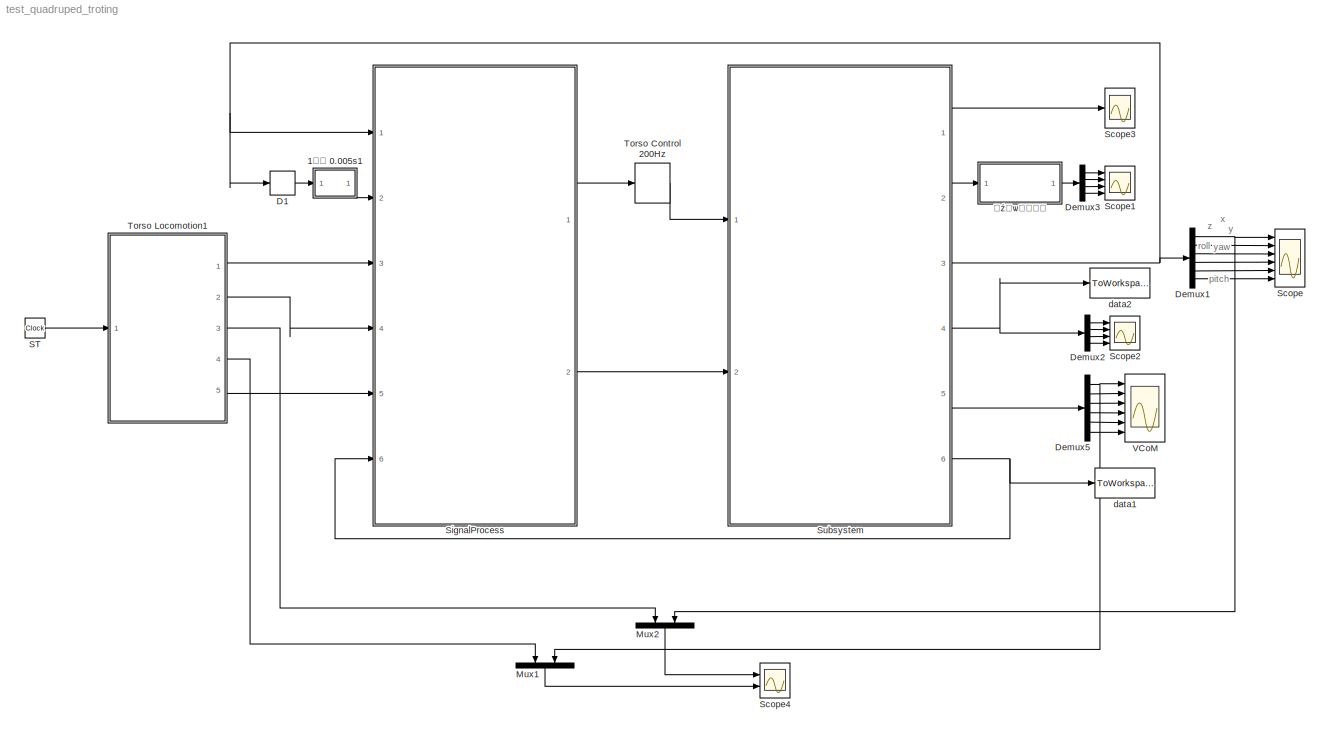
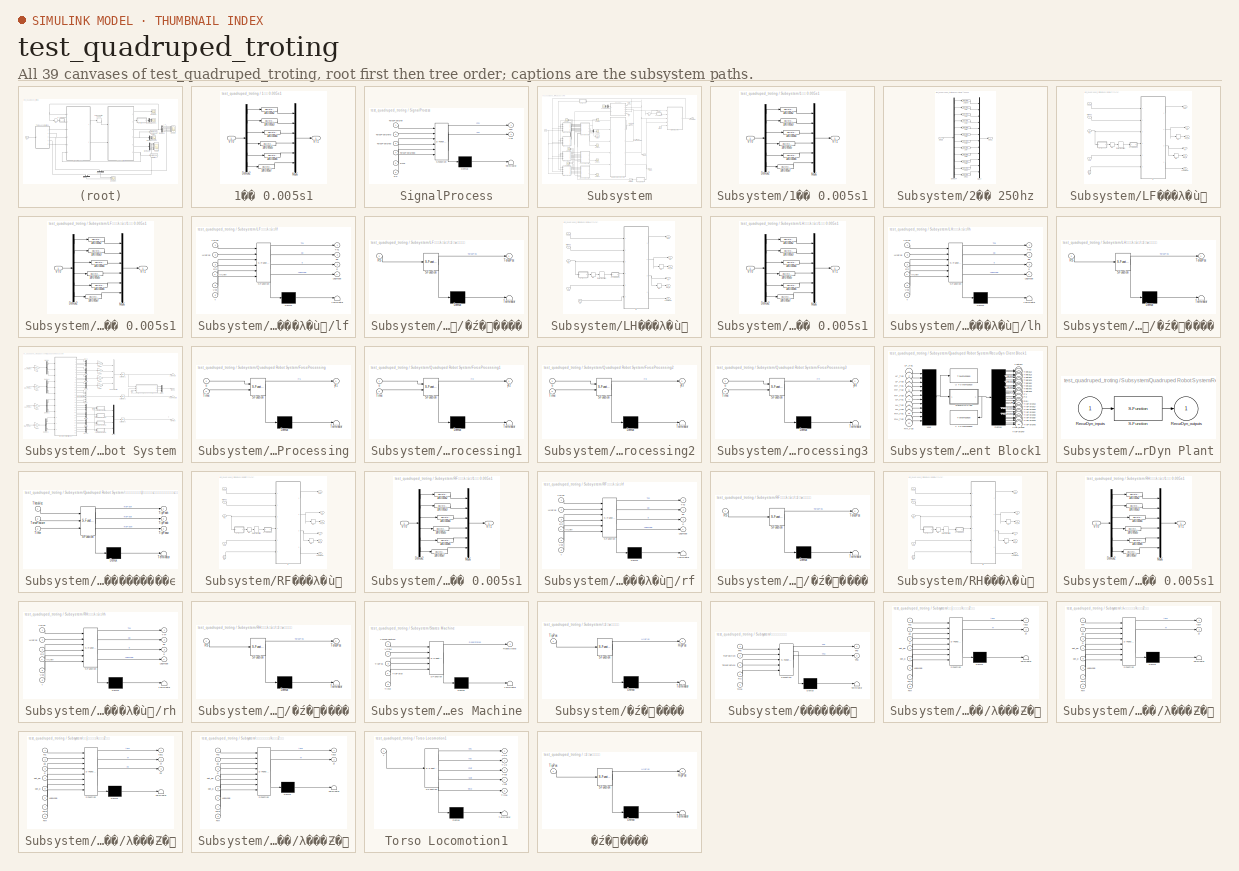
[diagram: thumbnail index - all 39 canvases of the model, root first then tree order]
MODEL test_quadruped_troting
KIND model
BLOCK [SubSystem] 1�� 0.005s1
  Ports = [1, 1]
  RequestExecContextInheritance = off
  SID = 2063
BLOCK [DiscreteTransferFcn] 1�� 0.005s1/1dl0.005s2
  Denominator = [1 -0.8128]
  InputPortMap = u0
  Numerator = [0.09091 0.09091]
  Ports = [1, 1]
  SID = 2065
  SampleTime = 0.001
BLOCK [DiscreteTransferFcn] 1�� 0.005s1/1dl0.005s3
  Denominator = [1 -0.8128]
  InputPortMap = u0
  Numerator = [0.09091 0.09091]
  Ports = [1, 1]
  SID = 2066
  SampleTime = 0.001
BLOCK [DiscreteTransferFcn] 1�� 0.005s1/1dl0.005s4
  Denominator = [1 -0.8128]
  InputPortMap = u0
  Numerator = [0.09091 0.09091]
  Ports = [1, 1]
  SID = 2067
  SampleTime = 0.001
BLOCK [DiscreteTransferFcn] 1�� 0.005s1/1dl0.005s5
  Denominator = [1 -0.8128]
  InputPortMap = u0
  Numerator = [0.09091 0.09091]
  Ports = [1, 1]
  SID = 2068
  SampleTime = 0.001
BLOCK [DiscreteTransferFcn] 1�� 0.005s1/1dl0.005s6
  Denominator = [1 -0.8128]
  InputPortMap = u0
  Numerator = [0.09091 0.09091]
  Ports = [1, 1]
  SID = 2069
  SampleTime = 0.001
BLOCK [DiscreteTransferFcn] 1�� 0.005s1/1dl0.005s7
  Denominator = [1 -0.8128]
  InputPortMap = u0
  Numerator = [0.09091 0.09091]
  Ports = [1, 1]
  SID = 2070
  SampleTime = 0.001
BLOCK [Demux] 1�� 0.005s1/Demux2
  DisplayOption = bar
  Outputs = 6
  Ports = [1, 6]
  SID = 2071
BLOCK [Mux] 1�� 0.005s1/Mux6
  DisplayOption = bar
  Inputs = 6
  Ports = [6, 1]
  SID = 2072
BLOCK [Inport] 1�� 0.005s1/VT0
  IconDisplay = Port number
  SID = 2064
BLOCK [Outport] 1�� 0.005s1/VT1
  IconDisplay = Port number
  SID = 2073
BLOCK [Derivative] D1
  CoefficientInTFapproximation = 0.01
  SID = 1705
BLOCK [Demux] Demux1
  DisplayOption = bar
  Outputs = 6
  Ports = [1, 6]
  SID = 1351
BLOCK [Demux] Demux2
  DisplayOption = bar
  Ports = [1, 4]
  SID = 1323
BLOCK [Demux] Demux3
  DisplayOption = bar
  Ports = [1, 4]
  SID = 1362
BLOCK [Demux] Demux5
  DisplayOption = bar
  Outputs = 6
  Ports = [1, 6]
  SID = 1744
BLOCK [Mux] Mux1
  DisplayOption = bar
  Inputs = 2
  Ports = [2, 1]
  SID = 2359
BLOCK [Mux] Mux2
  DisplayOption = bar
  Inputs = 2
  Ports = [2, 1]
  SID = 2358
BLOCK [Clock] ST
  SID = 1835
BLOCK [Scope] Scope
  Floating = off
  NumInputPorts = 6
  Ports = [6]
  SID = 1318
  ScopeSpecificationString = C++SS(StrPVP('Location','[1, 50, 1921, 1036]'),StrPVP('Open','off'),StrPVP('ZoomMode','yonly'),MxPVP('AxesTitles',53,'struct(''axes1'',''%<SignalLabel>'',''axes2'',''%<SignalLabel>'',''axes3'',''%<SignalLabel>'',''axes4'',''%<SignalLabel>'',''axes5'',''%<SignalLabel>'',''axes6'',''%<SignalLabel>'')'),MxPVP('ScopeGraphics',56,'struct(''FigureColor'',''[0.313725490196078 0.313725490196078 0.31372549...<+575ch>
BLOCK [Scope] Scope1
  Floating = off
  NumInputPorts = 4
  Ports = [4]
  SID = 1363
  ScopeSpecificationString = C++SS(StrPVP('Location','[5, 50, 1925, 1036]'),StrPVP('Open','off'),MxPVP('AxesTitles',53,'struct(''axes1'',''%<SignalLabel>'',''axes2'',''%<SignalLabel>'',''axes3'',''%<SignalLabel>'',''axes4'',''%<SignalLabel>'')'),MxPVP('ScopeGraphics',56,'struct(''FigureColor'',''[0.313725490196078 0.313725490196078 0.313725490196078]'',''AxesColor'',''[0.313725490196078 0.313725490196078 0.313725490196078]'',...<+528ch>
BLOCK [Scope] Scope2
  Floating = off
  NumInputPorts = 4
  Ports = [4]
  SID = 1324
  ScopeSpecificationString = C++SS(StrPVP('Location','[5, 50, 1925, 1036]'),StrPVP('Open','off'),MxPVP('AxesTitles',53,'struct(''axes1'',''%<SignalLabel>'',''axes2'',''%<SignalLabel>'',''axes3'',''%<SignalLabel>'',''axes4'',''%<SignalLabel>'')'),MxPVP('ScopeGraphics',56,'struct(''FigureColor'',''[0.313725490196078 0.313725490196078 0.313725490196078]'',''AxesColor'',''[0.313725490196078 0.313725490196078 0.313725490196078]'',...<+528ch>
BLOCK [Scope] Scope3
  Floating = off
  NumInputPorts = 1
  Ports = [1]
  SID = 1517
  ScopeSpecificationString = C++SS(StrPVP('Location','[5, 48, 1925, 1039]'),StrPVP('Open','off'),MxPVP('AxesTitles',53,'struct(''axes1'',''%<SignalLabel>'')'),MxPVP('ScopeGraphics',56,'struct(''FigureColor'',''[0.313725490196078 0.313725490196078 0.313725490196078]'',''AxesColor'',''[0.313725490196078 0.313725490196078 0.313725490196078]'',''AxesTickColor'',''[1 1 1]'',''LineColors'',''[1 0 0;0 1 0;1 1 0;1 0 0;0 1 0;0 0 1]'',...<+397ch>
BLOCK [Scope] Scope4
  Floating = off
  NumInputPorts = 2
  Ports = [2]
  SID = 2357
  ScopeSpecificationString = C++SS(StrPVP('Location','[5, 50, 1925, 1036]'),StrPVP('Open','off'),MxPVP('AxesTitles',53,'struct(''axes1'',''%<SignalLabel>'',''axes2'',''%<SignalLabel>'')'),MxPVP('ScopeGraphics',56,'struct(''FigureColor'',''[0.313725490196078 0.313725490196078 0.313725490196078]'',''AxesColor'',''[0.313725490196078 0.313725490196078 0.313725490196078]'',''AxesTickColor'',''[1 1 1]'',''LineColors'',''[1 0 0;0 1 ...<+457ch>
BLOCK [SubSystem] SignalProcess
  ErrorFcn = Stateflow.Translate.translate
  PermitHierarchicalResolution = ExplicitOnly
  Ports = [6, 2]
  RequestExecContextInheritance = off
  SFBlockType = MATLAB Function
  SID = 1309
  TreatAsAtomicUnit = on
BLOCK [Demux] SignalProcess/ Demux 
  Outputs = 1
  Ports = [1, 1]
  SID = 1309::45
BLOCK [S-Function] SignalProcess/ SFunction 
  EnableBusSupport = on
  FunctionName = sf_sfun
  PortCounts = [6 3]
  Ports = [6, 3]
  SFcnIsStateOwnerBlock = off
  SFunctionDeploymentMode = off
  SID = 1309::44
  Tag = Stateflow S-Function test_quadruped_troting 7
BLOCK [Terminator] SignalProcess/ Terminator 
  SID = 1309::46
BLOCK [Outport] SignalProcess/FFd
  IconDisplay = Port number
  SID = 1309::5
BLOCK [Inport] SignalProcess/RS
  IconDisplay = Port number
  Port = 6
  SID = 1309::39
BLOCK [Inport] SignalProcess/Time
  IconDisplay = Port number
  Port = 5
  SID = 1309::25
BLOCK [Inport] SignalProcess/TorsoPostured
  IconDisplay = Port number
  Port = 3
  SID = 1309::1
BLOCK [Inport] SignalProcess/TorsoPosturedd
  IconDisplay = Port number
  Port = 4
  SID = 1309::24
BLOCK [Inport] SignalProcess/TorsoPosturef
  IconDisplay = Port number
  SID = 1309::33
BLOCK [Inport] SignalProcess/TorsoPosturefd
  IconDisplay = Port number
  Port = 2
  SID = 1309::34
BLOCK [Outport] SignalProcess/Vxd
  IconDisplay = Port number
  Port = 2
  SID = 1309::43
BLOCK [SubSystem] Subsystem
  Ports = [2, 6]
  RequestExecContextInheritance = off
  SID = 1278
BLOCK [SubSystem] Subsystem/1�� 0.005s1
  Ports = [1, 1]
  RequestExecContextInheritance = off
  SID = 2008
BLOCK [DiscreteTransferFcn] Subsystem/1�� 0.005s1/1dl0.005s2
  Denominator = [1 -0.8128]
  InputPortMap = u0
  Numerator = [0.09091 0.09091]
  Ports = [1, 1]
  SID = 2010
  SampleTime = 0.001
BLOCK [DiscreteTransferFcn] Subsystem/1�� 0.005s1/1dl0.005s3
  Denominator = [1 -0.8128]
  InputPortMap = u0
  Numerator = [0.09091 0.09091]
  Ports = [1, 1]
  SID = 2011
  SampleTime = 0.001
BLOCK [DiscreteTransferFcn] Subsystem/1�� 0.005s1/1dl0.005s4
  Denominator = [1 -0.8128]
  InputPortMap = u0
  Numerator = [0.09091 0.09091]
  Ports = [1, 1]
  SID = 2012
  SampleTime = 0.001
BLOCK [DiscreteTransferFcn] Subsystem/1�� 0.005s1/1dl0.005s5
  Denominator = [1 -0.8128]
  InputPortMap = u0
  Numerator = [0.09091 0.09091]
  Ports = [1, 1]
  SID = 2013
  SampleTime = 0.001
BLOCK [DiscreteTransferFcn] Subsystem/1�� 0.005s1/1dl0.005s6
  Denominator = [1 -0.8128]
  InputPortMap = u0
  Numerator = [0.09091 0.09091]
  Ports = [1, 1]
  SID = 2014
  SampleTime = 0.001
BLOCK [DiscreteTransferFcn] Subsystem/1�� 0.005s1/1dl0.005s7
  Denominator = [1 -0.8128]
  InputPortMap = u0
  Numerator = [0.09091 0.09091]
  Ports = [1, 1]
  SID = 2015
  SampleTime = 0.001
BLOCK [Demux] Subsystem/1�� 0.005s1/Demux2
  DisplayOption = bar
  Outputs = 6
  Ports = [1, 6]
  SID = 2016
BLOCK [Mux] Subsystem/1�� 0.005s1/Mux6
  DisplayOption = bar
  Inputs = 6
  Ports = [6, 1]
  SID = 2017
BLOCK [Inport] Subsystem/1�� 0.005s1/VT0
  IconDisplay = Port number
  SID = 2009
BLOCK [Outport] Subsystem/1�� 0.005s1/VT1
  IconDisplay = Port number
  SID = 2018
BLOCK [SubSystem] Subsystem/2�� 250hz
  Ports = [1, 1]
  RequestExecContextInheritance = off
  SID = 1895
BLOCK [DiscreteTransferFcn] Subsystem/2�� 250hz/2dl1
  Denominator = [1 -1.587 0.6373]
  InputPortMap = u0
  Numerator = [0.01259 0.02519 0.01259]
  Ports = [1, 1]
  SID = 1982
  SampleTime = 0.001
BLOCK [DiscreteTransferFcn] Subsystem/2�� 250hz/2dl10
  Denominator = [1 -1.587 0.6373]
  InputPortMap = u0
  Numerator = [0.01259 0.02519 0.01259]
  Ports = [1, 1]
  SID = 1991
  SampleTime = 0.001
BLOCK [DiscreteTransferFcn] Subsystem/2�� 250hz/2dl11
  Denominator = [1 -1.587 0.6373]
  InputPortMap = u0
  Numerator = [0.01259 0.02519 0.01259]
  Ports = [1, 1]
  SID = 1992
  SampleTime = 0.001
BLOCK [DiscreteTransferFcn] Subsystem/2�� 250hz/2dl2
  Denominator = [1 -1.587 0.6373]
  InputPortMap = u0
  Numerator = [0.01259 0.02519 0.01259]
  Ports = [1, 1]
  SID = 1983
  SampleTime = 0.001
BLOCK [DiscreteTransferFcn] Subsystem/2�� 250hz/2dl250
  Denominator = [1 -1.587 0.6373]
  InputPortMap = u0
  Numerator = [0.01259 0.02519 0.01259]
  Ports = [1, 1]
  SID = 1901
  SampleTime = 0.001
BLOCK [DiscreteTransferFcn] Subsystem/2�� 250hz/2dl3
  Denominator = [1 -1.587 0.6373]
  InputPortMap = u0
  Numerator = [0.01259 0.02519 0.01259]
  Ports = [1, 1]
  SID = 1984
  SampleTime = 0.001
BLOCK [DiscreteTransferFcn] Subsystem/2�� 250hz/2dl4
  Denominator = [1 -1.587 0.6373]
  InputPortMap = u0
  Numerator = [0.01259 0.02519 0.01259]
  Ports = [1, 1]
  SID = 1985
  SampleTime = 0.001
BLOCK [DiscreteTransferFcn] Subsystem/2�� 250hz/2dl5
  Denominator = [1 -1.587 0.6373]
  InputPortMap = u0
  Numerator = [0.01259 0.02519 0.01259]
  Ports = [1, 1]
  SID = 1986
  SampleTime = 0.001
BLOCK [DiscreteTransferFcn] Subsystem/2�� 250hz/2dl6
  Denominator = [1 -1.587 0.6373]
  InputPortMap = u0
  Numerator = [0.01259 0.02519 0.01259]
  Ports = [1, 1]
  SID = 1987
  SampleTime = 0.001
BLOCK [DiscreteTransferFcn] Subsystem/2�� 250hz/2dl7
  Denominator = [1 -1.587 0.6373]
  InputPortMap = u0
  Numerator = [0.01259 0.02519 0.01259]
  Ports = [1, 1]
  SID = 1988
  SampleTime = 0.001
BLOCK [DiscreteTransferFcn] Subsystem/2�� 250hz/2dl8
  Denominator = [1 -1.587 0.6373]
  InputPortMap = u0
  Numerator = [0.01259 0.02519 0.01259]
  Ports = [1, 1]
  SID = 1989
  SampleTime = 0.001
BLOCK [DiscreteTransferFcn] Subsystem/2�� 250hz/2dl9
  Denominator = [1 -1.587 0.6373]
  InputPortMap = u0
  Numerator = [0.01259 0.02519 0.01259]
  Ports = [1, 1]
  SID = 1990
  SampleTime = 0.001
BLOCK [Demux] Subsystem/2�� 250hz/Demux4
  DisplayOption = bar
  Outputs = 12
  Ports = [1, 12]
  SID = 1903
BLOCK [Inport] Subsystem/2�� 250hz/FFs0
  IconDisplay = Port number
  SID = 1896
BLOCK [Outport] Subsystem/2�� 250hz/FFs1
  IconDisplay = Port number
  SID = 1905
BLOCK [Mux] Subsystem/2�� 250hz/Mux7
  DisplayOption = bar
  Inputs = 12
  Ports = [12, 1]
  SID = 1904
BLOCK [Clock] Subsystem/C
  SID = 1232
BLOCK [Clock] Subsystem/Clock
  SID = 1568
BLOCK [Derivative] Subsystem/D1
  CoefficientInTFapproximation = 0.01
  SID = 1660
BLOCK [Demux] Subsystem/Demux3
  DisplayOption = bar
  Ports = [1, 4]
  SID = 1518
BLOCK [Inport] Subsystem/FFd
  IconDisplay = Port number
  SID = 1281
BLOCK [Outport] Subsystem/JointAngle
  IconDisplay = Port number
  SID = 1279
BLOCK [SubSystem] Subsystem/LF���λ�ù滮
  Ports = [4, 6]
  RequestExecContextInheritance = off
  SID = 1375
BLOCK [SubSystem] Subsystem/LF���λ�ù滮/1�� 0.005s1
  Ports = [1, 1]
  RequestExecContextInheritance = off
  SID = 2019
BLOCK [DiscreteTransferFcn] Subsystem/LF���λ�ù滮/1�� 0.005s1/1dl0.005s2
  Denominator = [1 -0.8128]
  InputPortMap = u0
  Numerator = [0.09091 0.09091]
  Ports = [1, 1]
  SID = 2021
  SampleTime = 0.001
BLOCK [DiscreteTransferFcn] Subsystem/LF���λ�ù滮/1�� 0.005s1/1dl0.005s3
  Denominator = [1 -0.8128]
  InputPortMap = u0
  Numerator = [0.09091 0.09091]
  Ports = [1, 1]
  SID = 2022
  SampleTime = 0.001
BLOCK [DiscreteTransferFcn] Subsystem/LF���λ�ù滮/1�� 0.005s1/1dl0.005s4
  Denominator = [1 -0.8128]
  InputPortMap = u0
  Numerator = [0.09091 0.09091]
  Ports = [1, 1]
  SID = 2023
  SampleTime = 0.001
BLOCK [DiscreteTransferFcn] Subsystem/LF���λ�ù滮/1�� 0.005s1/1dl0.005s5
  Denominator = [1 -0.8128]
  InputPortMap = u0
  Numerator = [0.09091 0.09091]
  Ports = [1, 1]
  SID = 2024
  SampleTime = 0.001
BLOCK [DiscreteTransferFcn] Subsystem/LF���λ�ù滮/1�� 0.005s1/1dl0.005s6
  Denominator = [1 -0.8128]
  InputPortMap = u0
  Numerator = [0.09091 0.09091]
  Ports = [1, 1]
  SID = 2025
  SampleTime = 0.001
BLOCK [DiscreteTransferFcn] Subsystem/LF���λ�ù滮/1�� 0.005s1/1dl0.005s7
  Denominator = [1 -0.8128]
  InputPortMap = u0
  Numerator = [0.09091 0.09091]
  Ports = [1, 1]
  SID = 2026
  SampleTime = 0.001
BLOCK [Demux] Subsystem/LF���λ�ù滮/1�� 0.005s1/Demux2
  DisplayOption = bar
  Outputs = 6
  Ports = [1, 6]
  SID = 2027
BLOCK [Mux] Subsystem/LF���λ�ù滮/1�� 0.005s1/Mux6
  DisplayOption = bar
  Inputs = 6
  Ports = [6, 1]
  SID = 2028
BLOCK [Inport] Subsystem/LF���λ�ù滮/1�� 0.005s1/VT0
  IconDisplay = Port number
  SID = 2020
BLOCK [Outport] Subsystem/LF���λ�ù滮/1�� 0.005s1/VT1
  IconDisplay = Port number
  SID = 2029
BLOCK [Clock] Subsystem/LF���λ�ù滮/Clf
  SID = 1378
BLOCK [Derivative] Subsystem/LF���λ�ù滮/D1
  CoefficientInTFapproximation = 0.01
  SID = 1410
BLOCK [Derivative] Subsystem/LF���λ�ù滮/D2
  CoefficientInTFapproximation = 0.01
  SID = 1408
BLOCK [Derivative] Subsystem/LF���λ�ù滮/D3
  CoefficientInTFapproximation = 0.01
  SID = 1409
BLOCK [Inport] Subsystem/LF���λ�ù滮/HipPos
  IconDisplay = Port number
  Port = 2
  SID = 1406
BLOCK [Outport] Subsystem/LF���λ�ù滮/LegMode
  IconDisplay = Port number
  Port = 6
  SID = 1407
BLOCK [Inport] Subsystem/LF���λ�ù滮/RS
  IconDisplay = Port number
  Port = 3
  SID = 1377
BLOCK [RateTransition] Subsystem/LF���λ�ù滮/Rate Transition
  OutPortSampleTime = 0.002
  SID = 1993
BLOCK [Outport] Subsystem/LF���λ�ù滮/Th1
  IconDisplay = Port number
  SID = 1396
BLOCK [Inport] Subsystem/LF���λ�ù滮/ThVec
  IconDisplay = Port number
  SID = 1376
BLOCK [Inport] Subsystem/LF���λ�ù滮/Vxd
  IconDisplay = Port number
  Port = 4
  SID = 2074
BLOCK [Outport] Subsystem/LF���λ�ù滮/dot_q
  IconDisplay = Port number
  Port = 5
  SID = 1400
BLOCK [Outport] Subsystem/LF���λ�ù滮/dot_qd
  IconDisplay = Port number
  Port = 4
  SID = 1399
BLOCK [SubSystem] Subsystem/LF���λ�ù滮/lf
  ErrorFcn = Stateflow.Translate.translate
  PermitHierarchicalResolution = ExplicitOnly
  Ports = [6, 4]
  RequestExecContextInheritance = off
  SFBlockType = MATLAB Function
  SID = 1395
  TreatAsAtomicUnit = on
BLOCK [Demux] Subsystem/LF���λ�ù滮/lf/ Demux 
  Outputs = 1
  Ports = [1, 1]
  SID = 1395::54
BLOCK [S-Function] Subsystem/LF���λ�ù滮/lf/ SFunction 
  EnableBusSupport = on
  FunctionName = sf_sfun
  PortCounts = [6 5]
  Ports = [6, 5]
  SFcnIsStateOwnerBlock = off
  SFunctionDeploymentMode = off
  SID = 1395::53
  Tag = Stateflow S-Function test_quadruped_troting 31
BLOCK [Terminator] Subsystem/LF���λ�ù滮/lf/ Terminator 
  SID = 1395::55
BLOCK [Inport] Subsystem/LF���λ�ù滮/lf/HipPos
  IconDisplay = Port number
  Port = 2
  SID = 1395::44
BLOCK [Outport] Subsystem/LF���λ�ù滮/lf/LegMode
  IconDisplay = Port number
  Port = 4
  SID = 1395::50
BLOCK [Inport] Subsystem/LF���λ�ù滮/lf/RS
  IconDisplay = Port number
  Port = 3
  SID = 1395::51
BLOCK [Outport] Subsystem/LF���λ�ù滮/lf/Th1
  IconDisplay = Port number
  SID = 1395::47
BLOCK [Inport] Subsystem/LF���λ�ù滮/lf/ThVec
  IconDisplay = Port number
  SID = 1395::43
BLOCK [Inport] Subsystem/LF���λ�ù滮/lf/VCoM
  IconDisplay = Port number
  Port = 4
  SID = 1395::28
BLOCK [Inport] Subsystem/LF���λ�ù滮/lf/Vxd
  IconDisplay = Port number
  Port = 5
  SID = 1395::52
BLOCK [Outport] Subsystem/LF���λ�ù滮/lf/q
  IconDisplay = Port number
  Port = 3
  SID = 1395::48
BLOCK [Outport] Subsystem/LF���λ�ù滮/lf/qd
  IconDisplay = Port number
  Port = 2
  SID = 1395::5
BLOCK [Inport] Subsystem/LF���λ�ù滮/lf/t
  IconDisplay = Port number
  Port = 6
  SID = 1395::45
BLOCK [Outport] Subsystem/LF���λ�ù滮/q
  IconDisplay = Port number
  Port = 3
  SID = 1398
BLOCK [Outport] Subsystem/LF���λ�ù滮/qd
  IconDisplay = Port number
  Port = 2
  SID = 1397
BLOCK [SubSystem] Subsystem/LF���λ�ù滮/�ź�ѡ����
  ErrorFcn = Stateflow.Translate.translate
  PermitHierarchicalResolution = ExplicitOnly
  Ports = [1, 1]
  RequestExecContextInheritance = off
  SFBlockType = MATLAB Function
  SID = 1570
  TreatAsAtomicUnit = on
BLOCK [Demux] Subsystem/LF���λ�ù滮/�ź�ѡ����/ Demux 
  Outputs = 1
  Ports = [1, 1]
  SID = 1570::44
BLOCK [S-Function] Subsystem/LF���λ�ù滮/�ź�ѡ����/ SFunction 
  EnableBusSupport = on
  FunctionName = sf_sfun
  PortCounts = [1 2]
  Ports = [1, 2]
  SFcnIsStateOwnerBlock = off
  SFunctionDeploymentMode = off
  SID = 1570::43
  Tag = Stateflow S-Function test_quadruped_troting 18
BLOCK [Terminator] Subsystem/LF���λ�ù滮/�ź�ѡ����/ Terminator 
  SID = 1570::45
BLOCK [Inport] Subsystem/LF���λ�ù滮/�ź�ѡ����/RS
  IconDisplay = Port number
  SID = 1570::28
BLOCK [Outport] Subsystem/LF���λ�ù滮/�ź�ѡ����/TorsoPos
  IconDisplay = Port number
  SID = 1570::5
BLOCK [SubSystem] Subsystem/LH���λ�ù滮
  Ports = [4, 6]
  RequestExecContextInheritance = off
  SID = 1587
BLOCK [SubSystem] Subsystem/LH���λ�ù滮/1�� 0.005s1
  Ports = [1, 1]
  RequestExecContextInheritance = off
  SID = 2041
BLOCK [DiscreteTransferFcn] Subsystem/LH���λ�ù滮/1�� 0.005s1/1dl0.005s2
  Denominator = [1 -0.8128]
  InputPortMap = u0
  Numerator = [0.09091 0.09091]
  Ports = [1, 1]
  SID = 2043
  SampleTime = 0.001
BLOCK [DiscreteTransferFcn] Subsystem/LH���λ�ù滮/1�� 0.005s1/1dl0.005s3
  Denominator = [1 -0.8128]
  InputPortMap = u0
  Numerator = [0.09091 0.09091]
  Ports = [1, 1]
  SID = 2044
  SampleTime = 0.001
BLOCK [DiscreteTransferFcn] Subsystem/LH���λ�ù滮/1�� 0.005s1/1dl0.005s4
  Denominator = [1 -0.8128]
  InputPortMap = u0
  Numerator = [0.09091 0.09091]
  Ports = [1, 1]
  SID = 2045
  SampleTime = 0.001
BLOCK [DiscreteTransferFcn] Subsystem/LH���λ�ù滮/1�� 0.005s1/1dl0.005s5
  Denominator = [1 -0.8128]
  InputPortMap = u0
  Numerator = [0.09091 0.09091]
  Ports = [1, 1]
  SID = 2046
  SampleTime = 0.001
BLOCK [DiscreteTransferFcn] Subsystem/LH���λ�ù滮/1�� 0.005s1/1dl0.005s6
  Denominator = [1 -0.8128]
  InputPortMap = u0
  Numerator = [0.09091 0.09091]
  Ports = [1, 1]
  SID = 2047
  SampleTime = 0.001
BLOCK [DiscreteTransferFcn] Subsystem/LH���λ�ù滮/1�� 0.005s1/1dl0.005s7
  Denominator = [1 -0.8128]
  InputPortMap = u0
  Numerator = [0.09091 0.09091]
  Ports = [1, 1]
  SID = 2048
  SampleTime = 0.001
BLOCK [Demux] Subsystem/LH���λ�ù滮/1�� 0.005s1/Demux2
  DisplayOption = bar
  Outputs = 6
  Ports = [1, 6]
  SID = 2049
BLOCK [Mux] Subsystem/LH���λ�ù滮/1�� 0.005s1/Mux6
  DisplayOption = bar
  Inputs = 6
  Ports = [6, 1]
  SID = 2050
BLOCK [Inport] Subsystem/LH���λ�ù滮/1�� 0.005s1/VT0
  IconDisplay = Port number
  SID = 2042
BLOCK [Outport] Subsystem/LH���λ�ù滮/1�� 0.005s1/VT1
  IconDisplay = Port number
  SID = 2051
BLOCK [Clock] Subsystem/LH���λ�ù滮/Clf
  SID = 1591
BLOCK [Derivative] Subsystem/LH���λ�ù滮/D1
  CoefficientInTFapproximation = 0.01
  SID = 1592
BLOCK [Derivative] Subsystem/LH���λ�ù滮/D2
  CoefficientInTFapproximation = 0.01
  SID = 1593
BLOCK [Derivative] Subsystem/LH���λ�ù滮/D3
  CoefficientInTFapproximation = 0.01
  SID = 1594
BLOCK [Inport] Subsystem/LH���λ�ù滮/HipPos
  IconDisplay = Port number
  Port = 2
  SID = 1589
BLOCK [Outport] Subsystem/LH���λ�ù滮/LegMode
  IconDisplay = Port number
  Port = 6
  SID = 1602
BLOCK [Inport] Subsystem/LH���λ�ù滮/RS
  IconDisplay = Port number
  Port = 3
  SID = 1590
BLOCK [RateTransition] Subsystem/LH���λ�ù滮/Rate Transition
  OutPortSampleTime = 0.002
  SID = 1995
BLOCK [Outport] Subsystem/LH���λ�ù滮/Th3
  IconDisplay = Port number
  SID = 1597
BLOCK [Inport] Subsystem/LH���λ�ù滮/ThVec
  IconDisplay = Port number
  SID = 1588
BLOCK [Inport] Subsystem/LH���λ�ù滮/Vxd
  IconDisplay = Port number
  Port = 4
  SID = 2077
BLOCK [Outport] Subsystem/LH���λ�ù滮/dot_q
  IconDisplay = Port number
  Port = 5
  SID = 1601
BLOCK [Outport] Subsystem/LH���λ�ù滮/dot_qd
  IconDisplay = Port number
  Port = 4
  SID = 1600
BLOCK [SubSystem] Subsystem/LH���λ�ù滮/lh
  ErrorFcn = Stateflow.Translate.translate
  PermitHierarchicalResolution = ExplicitOnly
  Ports = [6, 4]
  RequestExecContextInheritance = off
  SFBlockType = MATLAB Function
  SID = 1595
  TreatAsAtomicUnit = on
BLOCK [Demux] Subsystem/LH���λ�ù滮/lh/ Demux 
  Outputs = 1
  Ports = [1, 1]
  SID = 1595::54
BLOCK [S-Function] Subsystem/LH���λ�ù滮/lh/ SFunction 
  EnableBusSupport = on
  FunctionName = sf_sfun
  PortCounts = [6 5]
  Ports = [6, 5]
  SFcnIsStateOwnerBlock = off
  SFunctionDeploymentMode = off
  SID = 1595::53
  Tag = Stateflow S-Function test_quadruped_troting 22
BLOCK [Terminator] Subsystem/LH���λ�ù滮/lh/ Terminator 
  SID = 1595::55
BLOCK [Inport] Subsystem/LH���λ�ù滮/lh/HipPos
  IconDisplay = Port number
  Port = 2
  SID = 1595::44
BLOCK [Outport] Subsystem/LH���λ�ù滮/lh/LegMode
  IconDisplay = Port number
  Port = 4
  SID = 1595::50
BLOCK [Inport] Subsystem/LH���λ�ù滮/lh/RS
  IconDisplay = Port number
  Port = 3
  SID = 1595::51
BLOCK [Outport] Subsystem/LH���λ�ù滮/lh/Th3
  IconDisplay = Port number
  SID = 1595::47
BLOCK [Inport] Subsystem/LH���λ�ù滮/lh/ThVec
  IconDisplay = Port number
  SID = 1595::43
BLOCK [Inport] Subsystem/LH���λ�ù滮/lh/VCoM
  IconDisplay = Port number
  Port = 4
  SID = 1595::28
BLOCK [Inport] Subsystem/LH���λ�ù滮/lh/Vxd
  IconDisplay = Port number
  Port = 5
  SID = 1595::52
BLOCK [Outport] Subsystem/LH���λ�ù滮/lh/q
  IconDisplay = Port number
  Port = 3
  SID = 1595::48
BLOCK [Outport] Subsystem/LH���λ�ù滮/lh/qd
  IconDisplay = Port number
  Port = 2
  SID = 1595::5
BLOCK [Inport] Subsystem/LH���λ�ù滮/lh/t
  IconDisplay = Port number
  Port = 6
  SID = 1595::45
BLOCK [Outport] Subsystem/LH���λ�ù滮/q
  IconDisplay = Port number
  Port = 3
  SID = 1599
BLOCK [Outport] Subsystem/LH���λ�ù滮/qd
  IconDisplay = Port number
  Port = 2
  SID = 1598
BLOCK [SubSystem] Subsystem/LH���λ�ù滮/�ź�ѡ����
  ErrorFcn = Stateflow.Translate.translate
  PermitHierarchicalResolution = ExplicitOnly
  Ports = [1, 1]
  RequestExecContextInheritance = off
  SFBlockType = MATLAB Function
  SID = 1596
  TreatAsAtomicUnit = on
BLOCK [Demux] Subsystem/LH���λ�ù滮/�ź�ѡ����/ Demux 
  Outputs = 1
  Ports = [1, 1]
  SID = 1596::43
BLOCK [S-Function] Subsystem/LH���λ�ù滮/�ź�ѡ����/ SFunction 
  EnableBusSupport = on
  FunctionName = sf_sfun
  PortCounts = [1 2]
  Ports = [1, 2]
  SFcnIsStateOwnerBlock = off
  SFunctionDeploymentMode = off
  SID = 1596::42
  Tag = Stateflow S-Function test_quadruped_troting 23
BLOCK [Terminator] Subsystem/LH���λ�ù滮/�ź�ѡ����/ Terminator 
  SID = 1596::44
BLOCK [Inport] Subsystem/LH���λ�ù滮/�ź�ѡ����/RS
  IconDisplay = Port number
  SID = 1596::28
BLOCK [Outport] Subsystem/LH���λ�ù滮/�ź�ѡ����/TorsoPos
  IconDisplay = Port number
  SID = 1596::5
BLOCK [Mux] Subsystem/Mux2
  DisplayOption = bar
  Inputs = 2
  Ports = [2, 1]
  SID = 1525
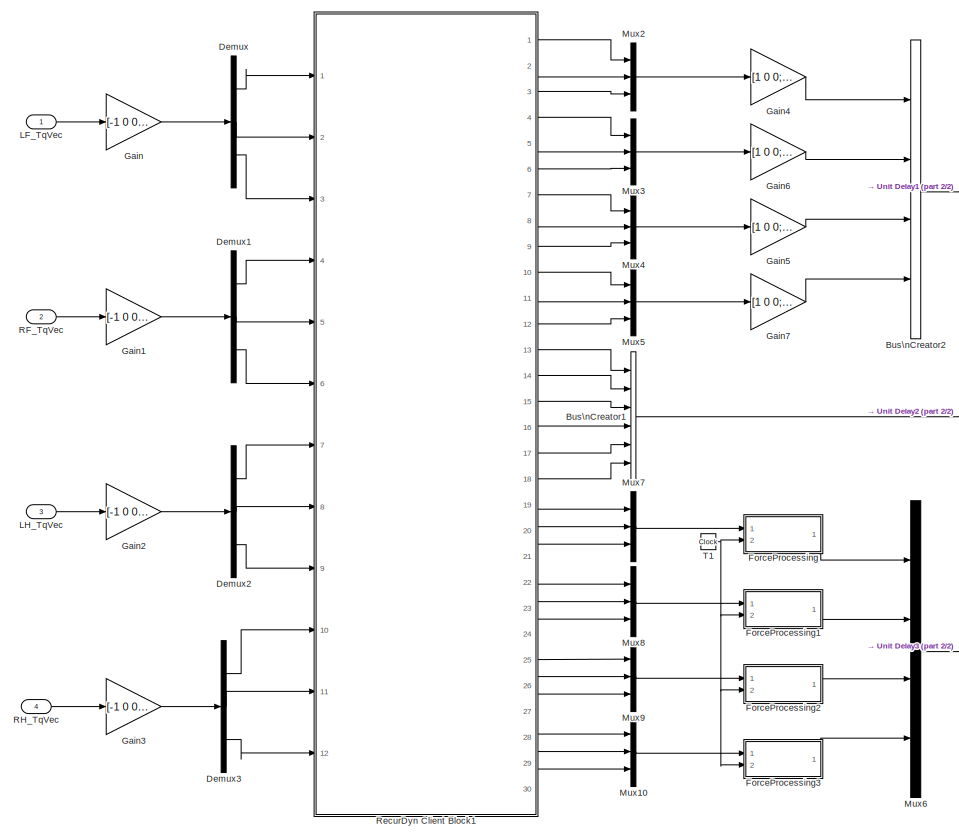
[diagram: Subsystem/Quadruped Robot System - part 1/2, left side, full height]
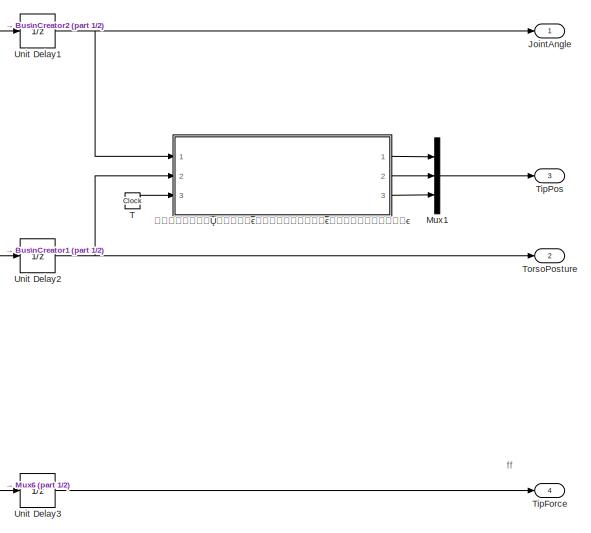
[diagram: Subsystem/Quadruped Robot System - part 2/2, middle right region]
BLOCK [SubSystem] Subsystem/Quadruped Robot System
  Ports = [4, 4]
  RequestExecContextInheritance = off
  SID = 1131
BLOCK [BusCreator] Subsystem/Quadruped Robot System/Bus\nCreator1
  DisplayOption = bar
  InheritFromInputs = on
  Inputs = 6
  Ports = [6, 1]
  SID = 2090
BLOCK [BusCreator] Subsystem/Quadruped Robot System/Bus\nCreator2
  DisplayOption = bar
  InheritFromInputs = on
  Inputs = 4
  Ports = [4, 1]
  SID = 1138
BLOCK [Demux] Subsystem/Quadruped Robot System/Demux
  DisplayOption = bar
  Outputs = 3
  Ports = [1, 3]
  SID = 2091
BLOCK [Demux] Subsystem/Quadruped Robot System/Demux1
  DisplayOption = bar
  Outputs = 3
  Ports = [1, 3]
  SID = 2092
BLOCK [Demux] Subsystem/Quadruped Robot System/Demux2
  DisplayOption = bar
  Outputs = 3
  Ports = [1, 3]
  SID = 2093
BLOCK [Demux] Subsystem/Quadruped Robot System/Demux3
  DisplayOption = bar
  Outputs = 3
  Ports = [1, 3]
  SID = 2094
BLOCK [SubSystem] Subsystem/Quadruped Robot System/ForceProcessing
  ErrorFcn = Stateflow.Translate.translate
  PermitHierarchicalResolution = ExplicitOnly
  Ports = [2, 1]
  RequestExecContextInheritance = off
  SFBlockType = MATLAB Function
  SID = 2095
  TreatAsAtomicUnit = on
BLOCK [Demux] Subsystem/Quadruped Robot System/ForceProcessing/ Demux 
  Outputs = 1
  Ports = [1, 1]
  SID = 2095::25
BLOCK [S-Function] Subsystem/Quadruped Robot System/ForceProcessing/ SFunction 
  EnableBusSupport = on
  FunctionName = sf_sfun
  PortCounts = [2 2]
  Ports = [2, 2]
  SFcnIsStateOwnerBlock = off
  SFunctionDeploymentMode = off
  SID = 2095::24
  Tag = Stateflow S-Function test_quadruped_troting 2
BLOCK [Terminator] Subsystem/Quadruped Robot System/ForceProcessing/ Terminator 
  SID = 2095::26
BLOCK [Inport] Subsystem/Quadruped Robot System/ForceProcessing/Time
  IconDisplay = Port number
  Port = 2
  SID = 2095::23
BLOCK [Inport] Subsystem/Quadruped Robot System/ForceProcessing/u
  IconDisplay = Port number
  SID = 2095::1
BLOCK [Outport] Subsystem/Quadruped Robot System/ForceProcessing/yf1
  IconDisplay = Port number
  SID = 2095::5
BLOCK [SubSystem] Subsystem/Quadruped Robot System/ForceProcessing1
  ErrorFcn = Stateflow.Translate.translate
  PermitHierarchicalResolution = ExplicitOnly
  Ports = [2, 1]
  RequestExecContextInheritance = off
  SFBlockType = MATLAB Function
  SID = 2170
  TreatAsAtomicUnit = on
BLOCK [Demux] Subsystem/Quadruped Robot System/ForceProcessing1/ Demux 
  Outputs = 1
  Ports = [1, 1]
  SID = 2170::25
BLOCK [S-Function] Subsystem/Quadruped Robot System/ForceProcessing1/ SFunction 
  EnableBusSupport = on
  FunctionName = sf_sfun
  PortCounts = [2 2]
  Ports = [2, 2]
  SFcnIsStateOwnerBlock = off
  SFunctionDeploymentMode = off
  SID = 2170::24
  Tag = Stateflow S-Function test_quadruped_troting 1
BLOCK [Terminator] Subsystem/Quadruped Robot System/ForceProcessing1/ Terminator 
  SID = 2170::26
BLOCK [Inport] Subsystem/Quadruped Robot System/ForceProcessing1/Time
  IconDisplay = Port number
  Port = 2
  SID = 2170::23
BLOCK [Inport] Subsystem/Quadruped Robot System/ForceProcessing1/u
  IconDisplay = Port number
  SID = 2170::1
BLOCK [Outport] Subsystem/Quadruped Robot System/ForceProcessing1/yf2
  IconDisplay = Port number
  SID = 2170::5
BLOCK [SubSystem] Subsystem/Quadruped Robot System/ForceProcessing2
  ErrorFcn = Stateflow.Translate.translate
  PermitHierarchicalResolution = ExplicitOnly
  Ports = [2, 1]
  RequestExecContextInheritance = off
  SFBlockType = MATLAB Function
  SID = 2171
  TreatAsAtomicUnit = on
BLOCK [Demux] Subsystem/Quadruped Robot System/ForceProcessing2/ Demux 
  Outputs = 1
  Ports = [1, 1]
  SID = 2171::25
BLOCK [S-Function] Subsystem/Quadruped Robot System/ForceProcessing2/ SFunction 
  EnableBusSupport = on
  FunctionName = sf_sfun
  PortCounts = [2 2]
  Ports = [2, 2]
  SFcnIsStateOwnerBlock = off
  SFunctionDeploymentMode = off
  SID = 2171::24
  Tag = Stateflow S-Function test_quadruped_troting 3
BLOCK [Terminator] Subsystem/Quadruped Robot System/ForceProcessing2/ Terminator 
  SID = 2171::26
BLOCK [Inport] Subsystem/Quadruped Robot System/ForceProcessing2/Time
  IconDisplay = Port number
  Port = 2
  SID = 2171::23
BLOCK [Inport] Subsystem/Quadruped Robot System/ForceProcessing2/u
  IconDisplay = Port number
  SID = 2171::1
BLOCK [Outport] Subsystem/Quadruped Robot System/ForceProcessing2/yf3
  IconDisplay = Port number
  SID = 2171::5
BLOCK [SubSystem] Subsystem/Quadruped Robot System/ForceProcessing3
  ErrorFcn = Stateflow.Translate.translate
  PermitHierarchicalResolution = ExplicitOnly
  Ports = [2, 1]
  RequestExecContextInheritance = off
  SFBlockType = MATLAB Function
  SID = 2172
  TreatAsAtomicUnit = on
BLOCK [Demux] Subsystem/Quadruped Robot System/ForceProcessing3/ Demux 
  Outputs = 1
  Ports = [1, 1]
  SID = 2172::25
BLOCK [S-Function] Subsystem/Quadruped Robot System/ForceProcessing3/ SFunction 
  EnableBusSupport = on
  FunctionName = sf_sfun
  PortCounts = [2 2]
  Ports = [2, 2]
  SFcnIsStateOwnerBlock = off
  SFunctionDeploymentMode = off
  SID = 2172::24
  Tag = Stateflow S-Function test_quadruped_troting 4
BLOCK [Terminator] Subsystem/Quadruped Robot System/ForceProcessing3/ Terminator 
  SID = 2172::26
BLOCK [Inport] Subsystem/Quadruped Robot System/ForceProcessing3/Time
  IconDisplay = Port number
  Port = 2
  SID = 2172::23
BLOCK [Inport] Subsystem/Quadruped Robot System/ForceProcessing3/u
  IconDisplay = Port number
  SID = 2172::1
BLOCK [Outport] Subsystem/Quadruped Robot System/ForceProcessing3/yf4
  IconDisplay = Port number
  SID = 2172::5
BLOCK [Gain] Subsystem/Quadruped Robot System/Gain
  Gain = [-1 0 0;0 1 0;0 0 -1]
  Multiplication = Matrix(K*u) (u vector)
  OutDataTypeStr = Inherit: Inherit via internal rule
  ParamDataTypeStr = Inherit: Inherit via internal rule
  SID = 2099
  SaturateOnIntegerOverflow = off
BLOCK [Gain] Subsystem/Quadruped Robot System/Gain1
  Gain = [-1 0 0;0 1 0;0 0 1]
  Multiplication = Matrix(K*u) (u vector)
  OutDataTypeStr = Inherit: Inherit via internal rule
  ParamDataTypeStr = Inherit: Inherit via internal rule
  SID = 2100
  SaturateOnIntegerOverflow = off
BLOCK [Gain] Subsystem/Quadruped Robot System/Gain2
  Gain = [-1 0 0;0 1 0;0 0 -1]
  Multiplication = Matrix(K*u) (u vector)
  OutDataTypeStr = Inherit: Inherit via internal rule
  ParamDataTypeStr = Inherit: Inherit via internal rule
  SID = 2101
  SaturateOnIntegerOverflow = off
BLOCK [Gain] Subsystem/Quadruped Robot System/Gain3
  Gain = [-1 0 0;0 1 0;0 0 1]
  Multiplication = Matrix(K*u) (u vector)
  OutDataTypeStr = Inherit: Inherit via internal rule
  ParamDataTypeStr = Inherit: Inherit via internal rule
  SID = 2102
  SaturateOnIntegerOverflow = off
BLOCK [Gain] Subsystem/Quadruped Robot System/Gain4
  Gain = [1 0 0;0 1 0;0 0 1]
  Multiplication = Matrix(K*u) (u vector)
  OutDataTypeStr = Inherit: Inherit via internal rule
  ParamDataTypeStr = Inherit: Inherit via internal rule
  SID = 2103
  SaturateOnIntegerOverflow = off
BLOCK [Gain] Subsystem/Quadruped Robot System/Gain5
  Gain = [1 0 0;0 1 0;0 0 1]
  Multiplication = Matrix(K*u) (u vector)
  OutDataTypeStr = Inherit: Inherit via internal rule
  ParamDataTypeStr = Inherit: Inherit via internal rule
  SID = 2104
  SaturateOnIntegerOverflow = off
BLOCK [Gain] Subsystem/Quadruped Robot System/Gain6
  Gain = [1 0 0;0 1 0;0 0 -1]
  Multiplication = Matrix(K*u) (u vector)
  OutDataTypeStr = Inherit: Inherit via internal rule
  ParamDataTypeStr = Inherit: Inherit via internal rule
  SID = 2105
  SaturateOnIntegerOverflow = off
BLOCK [Gain] Subsystem/Quadruped Robot System/Gain7
  Gain = [1 0 0;0 1 0;0 0 -1]
  Multiplication = Matrix(K*u) (u vector)
  OutDataTypeStr = Inherit: Inherit via internal rule
  ParamDataTypeStr = Inherit: Inherit via internal rule
  SID = 2106
  SaturateOnIntegerOverflow = off
BLOCK [Outport] Subsystem/Quadruped Robot System/JointAngle
  IconDisplay = Port number
  SID = 1225
BLOCK [Inport] Subsystem/Quadruped Robot System/LF_TqVec
  IconDisplay = Port number
  SID = 2086
BLOCK [Inport] Subsystem/Quadruped Robot System/LH_TqVec
  IconDisplay = Port number
  Port = 3
  SID = 2088
BLOCK [Mux] Subsystem/Quadruped Robot System/Mux1
  DisplayOption = bar
  Inputs = 3
  Ports = [3, 1]
  SID = 1527
BLOCK [Mux] Subsystem/Quadruped Robot System/Mux10
  DisplayOption = bar
  Inputs = 3
  Ports = [3, 1]
  SID = 2107
BLOCK [Mux] Subsystem/Quadruped Robot System/Mux2
  DisplayOption = bar
  Inputs = 3
  Ports = [3, 1]
  SID = 2108
BLOCK [Mux] Subsystem/Quadruped Robot System/Mux3
  DisplayOption = bar
  Inputs = 3
  Ports = [3, 1]
  SID = 2109
BLOCK [Mux] Subsystem/Quadruped Robot System/Mux4
  DisplayOption = bar
  Inputs = 3
  Ports = [3, 1]
  SID = 2110
BLOCK [Mux] Subsystem/Quadruped Robot System/Mux5
  DisplayOption = bar
  Inputs = 3
  Ports = [3, 1]
  SID = 2111
BLOCK [Mux] Subsystem/Quadruped Robot System/Mux6
  DisplayOption = bar
  Ports = [4, 1]
  SID = 1528
BLOCK [Mux] Subsystem/Quadruped Robot System/Mux7
  DisplayOption = bar
  Inputs = 3
  Ports = [3, 1]
  SID = 2112
BLOCK [Mux] Subsystem/Quadruped Robot System/Mux8
  DisplayOption = bar
  Inputs = 3
  Ports = [3, 1]
  SID = 2113
BLOCK [Mux] Subsystem/Quadruped Robot System/Mux9
  DisplayOption = bar
  Inputs = 3
  Ports = [3, 1]
  SID = 2114
BLOCK [Inport] Subsystem/Quadruped Robot System/RF_TqVec
  IconDisplay = Port number
  Port = 2
  SID = 2087
BLOCK [Inport] Subsystem/Quadruped Robot System/RH_TqVec
  IconDisplay = Port number
  Port = 4
  SID = 2089
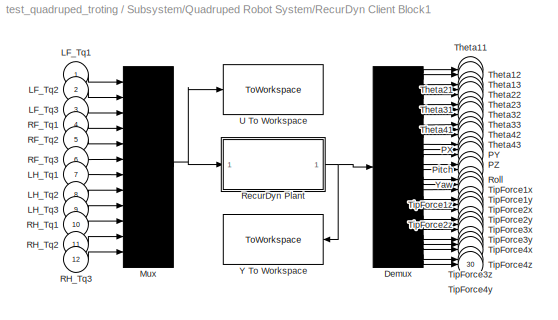
BLOCK [SubSystem] Subsystem/Quadruped Robot System/RecurDyn Client Block1
  Ports = [12, 30]
  RequestExecContextInheritance = off
  SID = 2360
  ShowPortLabels = none
BLOCK [Demux] Subsystem/Quadruped Robot System/RecurDyn Client Block1/Demux
  Outputs = 30
  Ports = [1, 30]
  SID = 2373
BLOCK [Inport] Subsystem/Quadruped Robot System/RecurDyn Client Block1/LF_Tq1
  IconDisplay = Port number
  SID = 2361
BLOCK [Inport] Subsystem/Quadruped Robot System/RecurDyn Client Block1/LF_Tq2
  IconDisplay = Port number
  Port = 2
  SID = 2362
BLOCK [Inport] Subsystem/Quadruped Robot System/RecurDyn Client Block1/LF_Tq3
  IconDisplay = Port number
  Port = 3
  SID = 2363
BLOCK [Inport] Subsystem/Quadruped Robot System/RecurDyn Client Block1/LH_Tq1
  IconDisplay = Port number
  Port = 7
  SID = 2367
BLOCK [Inport] Subsystem/Quadruped Robot System/RecurDyn Client Block1/LH_Tq2
  IconDisplay = Port number
  Port = 8
  SID = 2368
BLOCK [Inport] Subsystem/Quadruped Robot System/RecurDyn Client Block1/LH_Tq3
  IconDisplay = Port number
  Port = 9
  SID = 2369
BLOCK [Mux] Subsystem/Quadruped Robot System/RecurDyn Client Block1/Mux
  Inputs = 12
  Ports = [12, 1]
  SID = 2374
BLOCK [Outport] Subsystem/Quadruped Robot System/RecurDyn Client Block1/PX        
  IconDisplay = Port number
  Port = 13
  SID = 2393
BLOCK [Outport] Subsystem/Quadruped Robot System/RecurDyn Client Block1/PY        
  IconDisplay = Port number
  Port = 14
  SID = 2394
BLOCK [Outport] Subsystem/Quadruped Robot System/RecurDyn Client Block1/PZ        
  IconDisplay = Port number
  Port = 15
  SID = 2395
BLOCK [Outport] Subsystem/Quadruped Robot System/RecurDyn Client Block1/Pitch     
  IconDisplay = Port number
  Port = 16
  SID = 2396
BLOCK [Inport] Subsystem/Quadruped Robot System/RecurDyn Client Block1/RF_Tq1
  IconDisplay = Port number
  Port = 4
  SID = 2364
BLOCK [Inport] Subsystem/Quadruped Robot System/RecurDyn Client Block1/RF_Tq2
  IconDisplay = Port number
  Port = 5
  SID = 2365
BLOCK [Inport] Subsystem/Quadruped Robot System/RecurDyn Client Block1/RF_Tq3
  IconDisplay = Port number
  Port = 6
  SID = 2366
BLOCK [Inport] Subsystem/Quadruped Robot System/RecurDyn Client Block1/RH_Tq1
  IconDisplay = Port number
  Port = 10
  SID = 2370
BLOCK [Inport] Subsystem/Quadruped Robot System/RecurDyn Client Block1/RH_Tq2
  IconDisplay = Port number
  Port = 11
  SID = 2371
BLOCK [Inport] Subsystem/Quadruped Robot System/RecurDyn Client Block1/RH_Tq3
  IconDisplay = Port number
  Port = 12
  SID = 2372
BLOCK [SubSystem] Subsystem/Quadruped Robot System/RecurDyn Client Block1/RecurDyn Plant
  Ports = [1, 1]
  RequestExecContextInheritance = off
  SID = 2375
BLOCK [Inport] Subsystem/Quadruped Robot System/RecurDyn Client Block1/RecurDyn Plant/ RecurDyn_inputs
  IconDisplay = Port number
  SID = 2376
BLOCK [Outport] Subsystem/Quadruped Robot System/RecurDyn Client Block1/RecurDyn Plant/RecurDyn_outputs
  IconDisplay = Port number
  InitialOutput = 0
  SID = 2378
BLOCK [S-Function] Subsystem/Quadruped Robot System/RecurDyn Client Block1/RecurDyn Plant/S-Function
  EnableBusSupport = off
  FunctionName = recurdyn_client_9_1
  Parameters = RecurDyn_controltimestep_,RecurDyn_model_name,RecurDyn_,RecurDyn_static_,RecurDyn_step_,RecurDyn_show_,RecurDyn_ani_,Matlab_version_,RecurDyn_model_n,Plant_inputs_num,Plant_outputs_num,Waitingtime,Create_Output_Folder_,Output_File_Name_,Output_file_n
  Ports = [1, 1]
  SFcnIsStateOwnerBlock = off
  SFunctionDeploymentMode = off
  SID = 2377
BLOCK [Outport] Subsystem/Quadruped Robot System/RecurDyn Client Block1/Roll      
  IconDisplay = Port number
  Port = 17
  SID = 2397
BLOCK [Outport] Subsystem/Quadruped Robot System/RecurDyn Client Block1/Theta11   
  IconDisplay = Port number
  SID = 2381
BLOCK [Outport] Subsystem/Quadruped Robot System/RecurDyn Client Block1/Theta12   
  IconDisplay = Port number
  Port = 2
  SID = 2382
BLOCK [Outport] Subsystem/Quadruped Robot System/RecurDyn Client Block1/Theta13   
  IconDisplay = Port number
  Port = 3
  SID = 2383
BLOCK [Outport] Subsystem/Quadruped Robot System/RecurDyn Client Block1/Theta21   
  IconDisplay = Port number
  Port = 4
  SID = 2384
BLOCK [Outport] Subsystem/Quadruped Robot System/RecurDyn Client Block1/Theta22   
  IconDisplay = Port number
  Port = 5
  SID = 2385
BLOCK [Outport] Subsystem/Quadruped Robot System/RecurDyn Client Block1/Theta23   
  IconDisplay = Port number
  Port = 6
  SID = 2386
BLOCK [Outport] Subsystem/Quadruped Robot System/RecurDyn Client Block1/Theta31   
  IconDisplay = Port number
  Port = 7
  SID = 2387
BLOCK [Outport] Subsystem/Quadruped Robot System/RecurDyn Client Block1/Theta32   
  IconDisplay = Port number
  Port = 8
  SID = 2388
BLOCK [Outport] Subsystem/Quadruped Robot System/RecurDyn Client Block1/Theta33   
  IconDisplay = Port number
  Port = 9
  SID = 2389
BLOCK [Outport] Subsystem/Quadruped Robot System/RecurDyn Client Block1/Theta41   
  IconDisplay = Port number
  Port = 10
  SID = 2390
BLOCK [Outport] Subsystem/Quadruped Robot System/RecurDyn Client Block1/Theta42   
  IconDisplay = Port number
  Port = 11
  SID = 2391
BLOCK [Outport] Subsystem/Quadruped Robot System/RecurDyn Client Block1/Theta43   
  IconDisplay = Port number
  Port = 12
  SID = 2392
BLOCK [Outport] Subsystem/Quadruped Robot System/RecurDyn Client Block1/TipForce1x
  IconDisplay = Port number
  Port = 19
  SID = 2399
BLOCK [Outport] Subsystem/Quadruped Robot System/RecurDyn Client Block1/TipForce1y
  IconDisplay = Port number
  Port = 20
  SID = 2400
BLOCK [Outport] Subsystem/Quadruped Robot System/RecurDyn Client Block1/TipForce1z
  IconDisplay = Port number
  Port = 21
  SID = 2401
BLOCK [Outport] Subsystem/Quadruped Robot System/RecurDyn Client Block1/TipForce2x
  IconDisplay = Port number
  Port = 22
  SID = 2402
BLOCK [Outport] Subsystem/Quadruped Robot System/RecurDyn Client Block1/TipForce2y
  IconDisplay = Port number
  Port = 23
  SID = 2403
BLOCK [Outport] Subsystem/Quadruped Robot System/RecurDyn Client Block1/TipForce2z
  IconDisplay = Port number
  Port = 24
  SID = 2404
BLOCK [Outport] Subsystem/Quadruped Robot System/RecurDyn Client Block1/TipForce3x
  IconDisplay = Port number
  Port = 25
  SID = 2405
BLOCK [Outport] Subsystem/Quadruped Robot System/RecurDyn Client Block1/TipForce3y
  IconDisplay = Port number
  Port = 26
  SID = 2406
BLOCK [Outport] Subsystem/Quadruped Robot System/RecurDyn Client Block1/TipForce3z
  IconDisplay = Port number
  Port = 27
  SID = 2407
BLOCK [Outport] Subsystem/Quadruped Robot System/RecurDyn Client Block1/TipForce4x
  IconDisplay = Port number
  Port = 28
  SID = 2408
BLOCK [Outport] Subsystem/Quadruped Robot System/RecurDyn Client Block1/TipForce4y
  IconDisplay = Port number
  Port = 29
  SID = 2409
BLOCK [Outport] Subsystem/Quadruped Robot System/RecurDyn Client Block1/TipForce4z
  IconDisplay = Port number
  Port = 30
  SID = 2410
BLOCK [ToWorkspace] Subsystem/Quadruped Robot System/RecurDyn Client Block1/U To Workspace
  MaxDataPoints = inf
  Ports = [1]
  SID = 2379
  VariableName = RecurDyn_inputs
BLOCK [ToWorkspace] Subsystem/Quadruped Robot System/RecurDyn Client Block1/Y To Workspace
  MaxDataPoints = inf
  Ports = [1]
  SID = 2380
  VariableName = RecurDyn_outputs
BLOCK [Outport] Subsystem/Quadruped Robot System/RecurDyn Client Block1/Yaw       
  IconDisplay = Port number
  Port = 18
  SID = 2398
BLOCK [Clock] Subsystem/Quadruped Robot System/T
  SID = 1346
BLOCK [Clock] Subsystem/Quadruped Robot System/T1
  SID = 2173
BLOCK [Outport] Subsystem/Quadruped Robot System/TipForce
  IconDisplay = Port number
  Port = 4
  SID = 1228
BLOCK [Outport] Subsystem/Quadruped Robot System/TipPos
  IconDisplay = Port number
  Port = 3
  SID = 1226
BLOCK [Outport] Subsystem/Quadruped Robot System/TorsoPosture
  IconDisplay = Port number
  Port = 2
  SID = 1227
BLOCK [UnitDelay] Subsystem/Quadruped Robot System/Unit Delay1
  InitialCondition = [pi/2;pi/4;0;pi/2;pi/4;0;pi/2;pi/4;0;pi/2;pi/4;0]
  InputProcessing = Elements as channels (sample based)
  SID = 2166
  SampleTime = 0.001
BLOCK [UnitDelay] Subsystem/Quadruped Robot System/Unit Delay2
  InitialCondition = [0;0.70;0;0;0;0]
  InputProcessing = Elements as channels (sample based)
  SID = 2168
  SampleTime = 0.001
BLOCK [UnitDelay] Subsystem/Quadruped Robot System/Unit Delay3
  InitialCondition = [0;0;0;0;0;0;0;0;0;0;0;0]
  InputProcessing = Elements as channels (sample based)
  SID = 2167
  SampleTime = 0.001
BLOCK [SubSystem] Subsystem/Quadruped Robot System/������꣺�Ų�����ϵ����������ϵ�Լ���������ϵ
  ErrorFcn = Stateflow.Translate.translate
  PermitHierarchicalResolution = ExplicitOnly
  Ports = [3, 3]
  RequestExecContextInheritance = off
  SFBlockType = MATLAB Function
  SID = 2169
  TreatAsAtomicUnit = on
BLOCK [Demux] Subsystem/Quadruped Robot System/������꣺�Ų�����ϵ����������ϵ�Լ���������ϵ/ Demux 
  Outputs = 1
  Ports = [1, 1]
  SID = 2169::32
BLOCK [S-Function] Subsystem/Quadruped Robot System/������꣺�Ų�����ϵ����������ϵ�Լ���������ϵ/ SFunction 
  EnableBusSupport = on
  FunctionName = sf_sfun
  PortCounts = [3 4]
  Ports = [3, 4]
  SFcnIsStateOwnerBlock = off
  SFunctionDeploymentMode = off
  SID = 2169::31
  Tag = Stateflow S-Function test_quadruped_troting 6
BLOCK [Terminator] Subsystem/Quadruped Robot System/������꣺�Ų�����ϵ����������ϵ�Լ���������ϵ/ Terminator 
  SID = 2169::33
BLOCK [Inport] Subsystem/Quadruped Robot System/������꣺�Ų�����ϵ����������ϵ�Լ���������ϵ/ThetaVec
  IconDisplay = Port number
  SID = 2169::1
BLOCK [Inport] Subsystem/Quadruped Robot System/������꣺�Ų�����ϵ����������ϵ�Լ���������ϵ/Time
  IconDisplay = Port number
  Port = 3
  SID = 2169::30
BLOCK [Outport] Subsystem/Quadruped Robot System/������꣺�Ų�����ϵ����������ϵ�Լ���������ϵ/TipPosb
  IconDisplay = Port number
  Port = 2
  SID = 2169::27
BLOCK [Outport] Subsystem/Quadruped Robot System/������꣺�Ų�����ϵ����������ϵ�Լ���������ϵ/TipPosh
  IconDisplay = Port number
  SID = 2169::5
BLOCK [Outport] Subsystem/Quadruped Robot System/������꣺�Ų�����ϵ����������ϵ�Լ���������ϵ/TipPosw
  IconDisplay = Port number
  Port = 3
  SID = 2169::29
BLOCK [Inport] Subsystem/Quadruped Robot System/������꣺�Ų�����ϵ����������ϵ�Լ���������ϵ/TorsoPosture
  IconDisplay = Port number
  Port = 2
  SID = 2169::28
BLOCK [SubSystem] Subsystem/RF���λ�ù滮
  Ports = [4, 6]
  RequestExecContextInheritance = off
  SID = 1571
BLOCK [SubSystem] Subsystem/RF���λ�ù滮/1�� 0.005s1
  Ports = [1, 1]
  RequestExecContextInheritance = off
  SID = 2030
BLOCK [DiscreteTransferFcn] Subsystem/RF���λ�ù滮/1�� 0.005s1/1dl0.005s2
  Denominator = [1 -0.8128]
  InputPortMap = u0
  Numerator = [0.09091 0.09091]
  Ports = [1, 1]
  SID = 2032
  SampleTime = 0.001
BLOCK [DiscreteTransferFcn] Subsystem/RF���λ�ù滮/1�� 0.005s1/1dl0.005s3
  Denominator = [1 -0.8128]
  InputPortMap = u0
  Numerator = [0.09091 0.09091]
  Ports = [1, 1]
  SID = 2033
  SampleTime = 0.001
BLOCK [DiscreteTransferFcn] Subsystem/RF���λ�ù滮/1�� 0.005s1/1dl0.005s4
  Denominator = [1 -0.8128]
  InputPortMap = u0
  Numerator = [0.09091 0.09091]
  Ports = [1, 1]
  SID = 2034
  SampleTime = 0.001
BLOCK [DiscreteTransferFcn] Subsystem/RF���λ�ù滮/1�� 0.005s1/1dl0.005s5
  Denominator = [1 -0.8128]
  InputPortMap = u0
  Numerator = [0.09091 0.09091]
  Ports = [1, 1]
  SID = 2035
  SampleTime = 0.001
BLOCK [DiscreteTransferFcn] Subsystem/RF���λ�ù滮/1�� 0.005s1/1dl0.005s6
  Denominator = [1 -0.8128]
  InputPortMap = u0
  Numerator = [0.09091 0.09091]
  Ports = [1, 1]
  SID = 2036
  SampleTime = 0.001
BLOCK [DiscreteTransferFcn] Subsystem/RF���λ�ù滮/1�� 0.005s1/1dl0.005s7
  Denominator = [1 -0.8128]
  InputPortMap = u0
  Numerator = [0.09091 0.09091]
  Ports = [1, 1]
  SID = 2037
  SampleTime = 0.001
BLOCK [Demux] Subsystem/RF���λ�ù滮/1�� 0.005s1/Demux2
  DisplayOption = bar
  Outputs = 6
  Ports = [1, 6]
  SID = 2038
BLOCK [Mux] Subsystem/RF���λ�ù滮/1�� 0.005s1/Mux6
  DisplayOption = bar
  Inputs = 6
  Ports = [6, 1]
  SID = 2039
BLOCK [Inport] Subsystem/RF���λ�ù滮/1�� 0.005s1/VT0
  IconDisplay = Port number
  SID = 2031
BLOCK [Outport] Subsystem/RF���λ�ù滮/1�� 0.005s1/VT1
  IconDisplay = Port number
  SID = 2040
BLOCK [Clock] Subsystem/RF���λ�ù滮/Clf
  SID = 1575
BLOCK [Derivative] Subsystem/RF���λ�ù滮/D1
  CoefficientInTFapproximation = 0.01
  SID = 1576
BLOCK [Derivative] Subsystem/RF���λ�ù滮/D2
  CoefficientInTFapproximation = 0.01
  SID = 1577
BLOCK [Derivative] Subsystem/RF���λ�ù滮/D3
  CoefficientInTFapproximation = 0.01
  SID = 1578
BLOCK [Inport] Subsystem/RF���λ�ù滮/HipPos
  IconDisplay = Port number
  Port = 2
  SID = 1573
BLOCK [Outport] Subsystem/RF���λ�ù滮/LegMode
  IconDisplay = Port number
  Port = 6
  SID = 1586
BLOCK [Inport] Subsystem/RF���λ�ù滮/RS
  IconDisplay = Port number
  Port = 3
  SID = 1574
BLOCK [RateTransition] Subsystem/RF���λ�ù滮/Rate Transition
  OutPortSampleTime = 0.002
  SID = 1994
BLOCK [Outport] Subsystem/RF���λ�ù滮/Th2
  IconDisplay = Port number
  SID = 1581
BLOCK [Inport] Subsystem/RF���λ�ù滮/ThVec
  IconDisplay = Port number
  SID = 1572
BLOCK [Inport] Subsystem/RF���λ�ù滮/Vxd
  IconDisplay = Port number
  Port = 4
  SID = 2076
BLOCK [Outport] Subsystem/RF���λ�ù滮/dot_q
  IconDisplay = Port number
  Port = 5
  SID = 1585
BLOCK [Outport] Subsystem/RF���λ�ù滮/dot_qd
  IconDisplay = Port number
  Port = 4
  SID = 1584
BLOCK [Outport] Subsystem/RF���λ�ù滮/q
  IconDisplay = Port number
  Port = 3
  SID = 1583
BLOCK [Outport] Subsystem/RF���λ�ù滮/qd
  IconDisplay = Port number
  Port = 2
  SID = 1582
BLOCK [SubSystem] Subsystem/RF���λ�ù滮/rf
  ErrorFcn = Stateflow.Translate.translate
  PermitHierarchicalResolution = ExplicitOnly
  Ports = [6, 4]
  RequestExecContextInheritance = off
  SFBlockType = MATLAB Function
  SID = 1579
  TreatAsAtomicUnit = on
BLOCK [Demux] Subsystem/RF���λ�ù滮/rf/ Demux 
  Outputs = 1
  Ports = [1, 1]
  SID = 1579::54
BLOCK [S-Function] Subsystem/RF���λ�ù滮/rf/ SFunction 
  EnableBusSupport = on
  FunctionName = sf_sfun
  PortCounts = [6 5]
  Ports = [6, 5]
  SFcnIsStateOwnerBlock = off
  SFunctionDeploymentMode = off
  SID = 1579::53
  Tag = Stateflow S-Function test_quadruped_troting 19
BLOCK [Terminator] Subsystem/RF���λ�ù滮/rf/ Terminator 
  SID = 1579::55
BLOCK [Inport] Subsystem/RF���λ�ù滮/rf/HipPos
  IconDisplay = Port number
  Port = 2
  SID = 1579::44
BLOCK [Outport] Subsystem/RF���λ�ù滮/rf/LegMode
  IconDisplay = Port number
  Port = 4
  SID = 1579::50
BLOCK [Inport] Subsystem/RF���λ�ù滮/rf/RS
  IconDisplay = Port number
  Port = 3
  SID = 1579::51
BLOCK [Outport] Subsystem/RF���λ�ù滮/rf/Th2
  IconDisplay = Port number
  SID = 1579::47
BLOCK [Inport] Subsystem/RF���λ�ù滮/rf/ThVec
  IconDisplay = Port number
  SID = 1579::43
BLOCK [Inport] Subsystem/RF���λ�ù滮/rf/VCoM
  IconDisplay = Port number
  Port = 4
  SID = 1579::28
BLOCK [Inport] Subsystem/RF���λ�ù滮/rf/Vxd
  IconDisplay = Port number
  Port = 5
  SID = 1579::52
BLOCK [Outport] Subsystem/RF���λ�ù滮/rf/q
  IconDisplay = Port number
  Port = 3
  SID = 1579::48
BLOCK [Outport] Subsystem/RF���λ�ù滮/rf/qd
  IconDisplay = Port number
  Port = 2
  SID = 1579::5
BLOCK [Inport] Subsystem/RF���λ�ù滮/rf/t
  IconDisplay = Port number
  Port = 6
  SID = 1579::45
BLOCK [SubSystem] Subsystem/RF���λ�ù滮/�ź�ѡ����
  ErrorFcn = Stateflow.Translate.translate
  PermitHierarchicalResolution = ExplicitOnly
  Ports = [1, 1]
  RequestExecContextInheritance = off
  SFBlockType = MATLAB Function
  SID = 1580
  TreatAsAtomicUnit = on
BLOCK [Demux] Subsystem/RF���λ�ù滮/�ź�ѡ����/ Demux 
  Outputs = 1
  Ports = [1, 1]
  SID = 1580::43
BLOCK [S-Function] Subsystem/RF���λ�ù滮/�ź�ѡ����/ SFunction 
  EnableBusSupport = on
  FunctionName = sf_sfun
  PortCounts = [1 2]
  Ports = [1, 2]
  SFcnIsStateOwnerBlock = off
  SFunctionDeploymentMode = off
  SID = 1580::42
  Tag = Stateflow S-Function test_quadruped_troting 21
BLOCK [Terminator] Subsystem/RF���λ�ù滮/�ź�ѡ����/ Terminator 
  SID = 1580::44
BLOCK [Inport] Subsystem/RF���λ�ù滮/�ź�ѡ����/RS
  IconDisplay = Port number
  SID = 1580::28
BLOCK [Outport] Subsystem/RF���λ�ù滮/�ź�ѡ����/TorsoPos
  IconDisplay = Port number
  SID = 1580::5
BLOCK [SubSystem] Subsystem/RH���λ�ù滮
  Ports = [4, 6]
  RequestExecContextInheritance = off
  SID = 1603
BLOCK [SubSystem] Subsystem/RH���λ�ù滮/1�� 0.005s1
  Ports = [1, 1]
  RequestExecContextInheritance = off
  SID = 2052
BLOCK [DiscreteTransferFcn] Subsystem/RH���λ�ù滮/1�� 0.005s1/1dl0.005s2
  Denominator = [1 -0.8128]
  InputPortMap = u0
  Numerator = [0.09091 0.09091]
  Ports = [1, 1]
  SID = 2054
  SampleTime = 0.001
BLOCK [DiscreteTransferFcn] Subsystem/RH���λ�ù滮/1�� 0.005s1/1dl0.005s3
  Denominator = [1 -0.8128]
  InputPortMap = u0
  Numerator = [0.09091 0.09091]
  Ports = [1, 1]
  SID = 2055
  SampleTime = 0.001
BLOCK [DiscreteTransferFcn] Subsystem/RH���λ�ù滮/1�� 0.005s1/1dl0.005s4
  Denominator = [1 -0.8128]
  InputPortMap = u0
  Numerator = [0.09091 0.09091]
  Ports = [1, 1]
  SID = 2056
  SampleTime = 0.001
BLOCK [DiscreteTransferFcn] Subsystem/RH���λ�ù滮/1�� 0.005s1/1dl0.005s5
  Denominator = [1 -0.8128]
  InputPortMap = u0
  Numerator = [0.09091 0.09091]
  Ports = [1, 1]
  SID = 2057
  SampleTime = 0.001
BLOCK [DiscreteTransferFcn] Subsystem/RH���λ�ù滮/1�� 0.005s1/1dl0.005s6
  Denominator = [1 -0.8128]
  InputPortMap = u0
  Numerator = [0.09091 0.09091]
  Ports = [1, 1]
  SID = 2058
  SampleTime = 0.001
BLOCK [DiscreteTransferFcn] Subsystem/RH���λ�ù滮/1�� 0.005s1/1dl0.005s7
  Denominator = [1 -0.8128]
  InputPortMap = u0
  Numerator = [0.09091 0.09091]
  Ports = [1, 1]
  SID = 2059
  SampleTime = 0.001
BLOCK [Demux] Subsystem/RH���λ�ù滮/1�� 0.005s1/Demux2
  DisplayOption = bar
  Outputs = 6
  Ports = [1, 6]
  SID = 2060
BLOCK [Mux] Subsystem/RH���λ�ù滮/1�� 0.005s1/Mux6
  DisplayOption = bar
  Inputs = 6
  Ports = [6, 1]
  SID = 2061
BLOCK [Inport] Subsystem/RH���λ�ù滮/1�� 0.005s1/VT0
  IconDisplay = Port number
  SID = 2053
BLOCK [Outport] Subsystem/RH���λ�ù滮/1�� 0.005s1/VT1
  IconDisplay = Port number
  SID = 2062
BLOCK [Clock] Subsystem/RH���λ�ù滮/Clf
  SID = 1607
BLOCK [Derivative] Subsystem/RH���λ�ù滮/D1
  CoefficientInTFapproximation = 0.01
  SID = 1608
BLOCK [Derivative] Subsystem/RH���λ�ù滮/D2
  CoefficientInTFapproximation = 0.01
  SID = 1609
BLOCK [Derivative] Subsystem/RH���λ�ù滮/D3
  CoefficientInTFapproximation = 0.01
  SID = 1610
BLOCK [Inport] Subsystem/RH���λ�ù滮/HipPos
  IconDisplay = Port number
  Port = 2
  SID = 1605
BLOCK [Outport] Subsystem/RH���λ�ù滮/LegMode
  IconDisplay = Port number
  Port = 6
  SID = 1618
BLOCK [Inport] Subsystem/RH���λ�ù滮/RS
  IconDisplay = Port number
  Port = 3
  SID = 1606
BLOCK [RateTransition] Subsystem/RH���λ�ù滮/Rate Transition
  OutPortSampleTime = 0.002
  SID = 1996
BLOCK [Outport] Subsystem/RH���λ�ù滮/Th4
  IconDisplay = Port number
  SID = 1613
BLOCK [Inport] Subsystem/RH���λ�ù滮/ThVec
  IconDisplay = Port number
  SID = 1604
BLOCK [Inport] Subsystem/RH���λ�ù滮/Vxd
  IconDisplay = Port number
  Port = 4
  SID = 2078
BLOCK [Outport] Subsystem/RH���λ�ù滮/dot_q
  IconDisplay = Port number
  Port = 5
  SID = 1617
BLOCK [Outport] Subsystem/RH���λ�ù滮/dot_qd
  IconDisplay = Port number
  Port = 4
  SID = 1616
BLOCK [Outport] Subsystem/RH���λ�ù滮/q
  IconDisplay = Port number
  Port = 3
  SID = 1615
BLOCK [Outport] Subsystem/RH���λ�ù滮/qd
  IconDisplay = Port number
  Port = 2
  SID = 1614
BLOCK [SubSystem] Subsystem/RH���λ�ù滮/rh
  ErrorFcn = Stateflow.Translate.translate
  PermitHierarchicalResolution = ExplicitOnly
  Ports = [6, 4]
  RequestExecContextInheritance = off
  SFBlockType = MATLAB Function
  SID = 1611
  TreatAsAtomicUnit = on
BLOCK [Demux] Subsystem/RH���λ�ù滮/rh/ Demux 
  Outputs = 1
  Ports = [1, 1]
  SID = 1611::54
BLOCK [S-Function] Subsystem/RH���λ�ù滮/rh/ SFunction 
  EnableBusSupport = on
  FunctionName = sf_sfun
  PortCounts = [6 5]
  Ports = [6, 5]
  SFcnIsStateOwnerBlock = off
  SFunctionDeploymentMode = off
  SID = 1611::53
  Tag = Stateflow S-Function test_quadruped_troting 24
BLOCK [Terminator] Subsystem/RH���λ�ù滮/rh/ Terminator 
  SID = 1611::55
BLOCK [Inport] Subsystem/RH���λ�ù滮/rh/HipPos
  IconDisplay = Port number
  Port = 2
  SID = 1611::44
BLOCK [Outport] Subsystem/RH���λ�ù滮/rh/LegMode
  IconDisplay = Port number
  Port = 4
  SID = 1611::50
BLOCK [Inport] Subsystem/RH���λ�ù滮/rh/RS
  IconDisplay = Port number
  Port = 3
  SID = 1611::51
BLOCK [Outport] Subsystem/RH���λ�ù滮/rh/Th4
  IconDisplay = Port number
  SID = 1611::47
BLOCK [Inport] Subsystem/RH���λ�ù滮/rh/ThVec
  IconDisplay = Port number
  SID = 1611::43
BLOCK [Inport] Subsystem/RH���λ�ù滮/rh/VCoM
  IconDisplay = Port number
  Port = 4
  SID = 1611::28
BLOCK [Inport] Subsystem/RH���λ�ù滮/rh/Vxd
  IconDisplay = Port number
  Port = 5
  SID = 1611::52
BLOCK [Outport] Subsystem/RH���λ�ù滮/rh/q
  IconDisplay = Port number
  Port = 3
  SID = 1611::48
BLOCK [Outport] Subsystem/RH���λ�ù滮/rh/qd
  IconDisplay = Port number
  Port = 2
  SID = 1611::5
BLOCK [Inport] Subsystem/RH���λ�ù滮/rh/t
  IconDisplay = Port number
  Port = 6
  SID = 1611::45
BLOCK [SubSystem] Subsystem/RH���λ�ù滮/�ź�ѡ����
  ErrorFcn = Stateflow.Translate.translate
  PermitHierarchicalResolution = ExplicitOnly
  Ports = [1, 1]
  RequestExecContextInheritance = off
  SFBlockType = MATLAB Function
  SID = 1612
  TreatAsAtomicUnit = on
BLOCK [Demux] Subsystem/RH���λ�ù滮/�ź�ѡ����/ Demux 
  Outputs = 1
  Ports = [1, 1]
  SID = 1612::43
BLOCK [S-Function] Subsystem/RH���λ�ù滮/�ź�ѡ����/ SFunction 
  EnableBusSupport = on
  FunctionName = sf_sfun
  PortCounts = [1 2]
  Ports = [1, 2]
  SFcnIsStateOwnerBlock = off
  SFunctionDeploymentMode = off
  SID = 1612::42
  Tag = Stateflow S-Function test_quadruped_troting 25
BLOCK [Terminator] Subsystem/RH���λ�ù滮/�ź�ѡ����/ Terminator 
  SID = 1612::44
BLOCK [Inport] Subsystem/RH���λ�ù滮/�ź�ѡ����/RS
  IconDisplay = Port number
  SID = 1612::28
BLOCK [Outport] Subsystem/RH���λ�ù滮/�ź�ѡ����/TorsoPos
  IconDisplay = Port number
  SID = 1612::5
BLOCK [Outport] Subsystem/RobotStates
  IconDisplay = Port number
  Port = 6
  SID = 1569
BLOCK [Saturate] Subsystem/Saturation
  InputPortMap = u0
  LowerLimit = -1500
  Ports = [1, 1]
  SID = 1655
  UpperLimit = 1500
BLOCK [Scope] Subsystem/Scope1
  Floating = off
  NumInputPorts = 4
  Ports = [4]
  SID = 1519
  ScopeSpecificationString = C++SS(StrPVP('Location','[5, 50, 1925, 1036]'),StrPVP('Open','off'),StrPVP('ZoomMode','yonly'),MxPVP('AxesTitles',53,'struct(''axes1'',''%<SignalLabel>'',''axes2'',''%<SignalLabel>'',''axes3'',''%<SignalLabel>'',''axes4'',''%<SignalLabel>'')'),MxPVP('ScopeGraphics',56,'struct(''FigureColor'',''[0.313725490196078 0.313725490196078 0.313725490196078]'',''AxesColor'',''[0.313725490196078 0.3137254901...<+555ch>
BLOCK [Scope] Subsystem/Scope2
  Floating = off
  NumInputPorts = 1
  Ports = [1]
  SID = 1521
  ScopeSpecificationString = C++SS(StrPVP('Location','[1, 50, 1921, 1036]'),StrPVP('Open','off'),MxPVP('AxesTitles',53,'struct(''axes1'',''%<SignalLabel>'')'),MxPVP('ScopeGraphics',56,'struct(''FigureColor'',''[0.313725490196078 0.313725490196078 0.313725490196078]'',''AxesColor'',''[0.313725490196078 0.313725490196078 0.313725490196078]'',''AxesTickColor'',''[1 1 1]'',''LineColors'',''[1 0 0;0 1 0;1 1 0;1 0 0;0 1 0;0 0 1]'',...<+399ch>
BLOCK [Scope] Subsystem/Scope3
  Floating = off
  NumInputPorts = 1
  Ports = [1]
  SID = 1520
  ScopeSpecificationString = C++SS(StrPVP('Location','[1, 50, 1921, 1036]'),StrPVP('Open','off'),MxPVP('AxesTitles',53,'struct(''axes1'',''%<SignalLabel>'')'),MxPVP('ScopeGraphics',56,'struct(''FigureColor'',''[0.313725490196078 0.313725490196078 0.313725490196078]'',''AxesColor'',''[0.313725490196078 0.313725490196078 0.313725490196078]'',''AxesTickColor'',''[1 1 1]'',''LineColors'',''[1 0 0;0 1 0;1 1 0;1 0 0;0 1 0;1 1 0]'',...<+435ch>
BLOCK [Scope] Subsystem/Scope4
  Floating = off
  NumInputPorts = 1
  Ports = [1]
  SID = 1522
  ScopeSpecificationString = C++SS(StrPVP('Location','[5, 48, 1925, 1039]'),StrPVP('Open','off'),StrPVP('ZoomMode','yonly'),MxPVP('AxesTitles',53,'struct(''axes1'',''%<SignalLabel>'')'),MxPVP('ScopeGraphics',56,'struct(''FigureColor'',''[0.313725490196078 0.313725490196078 0.313725490196078]'',''AxesColor'',''[0.313725490196078 0.313725490196078 0.313725490196078]'',''AxesTickColor'',''[1 1 1]'',''LineColors'',''[1 0 0;0 1 0;...<+426ch>
BLOCK [Scope] Subsystem/Scope5
  Floating = off
  NumInputPorts = 1
  Ports = [1]
  SID = 1523
  ScopeSpecificationString = C++SS(StrPVP('Location','[5, 50, 1925, 1036]'),StrPVP('Open','off'),MxPVP('AxesTitles',53,'struct(''axes1'',''%<SignalLabel>'')'),MxPVP('ScopeGraphics',56,'struct(''FigureColor'',''[0.313725490196078 0.313725490196078 0.313725490196078]'',''AxesColor'',''[0.313725490196078 0.313725490196078 0.313725490196078]'',''AxesTickColor'',''[1 1 1]'',''LineColors'',''[1 0 0;0 1 0;1 1 0;1 0 0;0 1 0;0 0 1]'',...<+399ch>
BLOCK [Scope] Subsystem/Scope6
  Floating = off
  NumInputPorts = 1
  Ports = [1]
  SID = 1561
  ScopeSpecificationString = C++SS(StrPVP('Location','[5, 50, 1925, 1036]'),StrPVP('Open','off'),MxPVP('AxesTitles',53,'struct(''axes1'',''%<SignalLabel>'')'),MxPVP('ScopeGraphics',56,'struct(''FigureColor'',''[0.313725490196078 0.313725490196078 0.313725490196078]'',''AxesColor'',''[0.313725490196078 0.313725490196078 0.313725490196078]'',''AxesTickColor'',''[1 1 1]'',''LineColors'',''[1 0 0;0 1 0;1 1 0;1 0 0;0 1 0;1 1 0]'',...<+463ch>
BLOCK [Scope] Subsystem/Scope7
  Floating = off
  NumInputPorts = 2
  Ports = [2]
  SID = 1563
  ScopeSpecificationString = C++SS(StrPVP('Location','[1, 50, 1921, 1036]'),StrPVP('Open','off'),MxPVP('AxesTitles',53,'struct(''axes1'',''%<SignalLabel>'',''axes2'',''%<SignalLabel>'')'),MxPVP('ScopeGraphics',56,'struct(''FigureColor'',''[0.313725490196078 0.313725490196078 0.313725490196078]'',''AxesColor'',''[0.313725490196078 0.313725490196078 0.313725490196078]'',''AxesTickColor'',''[1 1 1]'',''LineColors'',''[1 0 0;1 1 ...<+479ch>  <repeated x3 — deduplicated; at blocks: Scope7, Scope8, Scope9>
BLOCK [Scope] Subsystem/Scope8
  Floating = off
  NumInputPorts = 2
  Ports = [2]
  SID = 2225
BLOCK [Scope] Subsystem/Scope9
  Floating = off
  NumInputPorts = 2
  Ports = [2]
  SID = 2226
BLOCK [SubSystem] Subsystem/States Machine
  ErrorFcn = Stateflow.Translate.translate
  PermitHierarchicalResolution = ExplicitOnly
  Ports = [5, 1]
  RequestExecContextInheritance = off
  SFBlockType = MATLAB Function
  SID = 1567
  TreatAsAtomicUnit = on
BLOCK [Demux] Subsystem/States Machine/ Demux 
  Outputs = 1
  Ports = [1, 1]
  SID = 1567::56
BLOCK [S-Function] Subsystem/States Machine/ SFunction 
  EnableBusSupport = on
  FunctionName = sf_sfun
  PortCounts = [5 2]
  Ports = [5, 2]
  SFcnIsStateOwnerBlock = off
  SFunctionDeploymentMode = off
  SID = 1567::55
  Tag = Stateflow S-Function test_quadruped_troting 17
BLOCK [Terminator] Subsystem/States Machine/ Terminator 
  SID = 1567::57
BLOCK [Outport] Subsystem/States Machine/RobotStates
  IconDisplay = Port number
  SID = 1567::47
BLOCK [Inport] Subsystem/States Machine/Time
  IconDisplay = Port number
  Port = 5
  SID = 1567::33
BLOCK [Inport] Subsystem/States Machine/TipForce
  IconDisplay = Port number
  Port = 4
  SID = 1567::52
BLOCK [Inport] Subsystem/States Machine/TipPos
  IconDisplay = Port number
  Port = 3
  SID = 1567::54
BLOCK [Inport] Subsystem/States Machine/TorsoPosuture
  IconDisplay = Port number
  SID = 1567::25
BLOCK [Inport] Subsystem/States Machine/VCoM
  IconDisplay = Port number
  Port = 2
  SID = 1567::53
BLOCK [Outport] Subsystem/TipPos
  IconDisplay = Port number
  Port = 2
  SID = 1280
BLOCK [Outport] Subsystem/Tipforce
  IconDisplay = Port number
  Port = 4
  SID = 1285
BLOCK [Outport] Subsystem/TorsoPosuture
  IconDisplay = Port number
  Port = 3
  SID = 1284
BLOCK [Outport] Subsystem/VCoM
  IconDisplay = Port number
  Port = 5
  SID = 1704
BLOCK [Inport] Subsystem/Vxd
  IconDisplay = Port number
  Port = 2
  SID = 2075
BLOCK [ToWorkspace] Subsystem/data2
  MaxDataPoints = inf
  Ports = [1]
  SID = 1673
  SampleTime = -1
  SaveFormat = Timeseries
  VariableName = FFTrack1
BLOCK [SubSystem] Subsystem/�ź�ѡ����
  ErrorFcn = Stateflow.Translate.translate
  PermitHierarchicalResolution = ExplicitOnly
  Ports = [1, 1]
  RequestExecContextInheritance = off
  SFBlockType = MATLAB Function
  SID = 1547
  TreatAsAtomicUnit = on
BLOCK [Demux] Subsystem/�ź�ѡ����/ Demux 
  Outputs = 1
  Ports = [1, 1]
  SID = 1547::44
BLOCK [S-Function] Subsystem/�ź�ѡ����/ SFunction 
  EnableBusSupport = on
  FunctionName = sf_sfun
  PortCounts = [1 2]
  Ports = [1, 2]
  SFcnIsStateOwnerBlock = off
  SFunctionDeploymentMode = off
  SID = 1547::43
  Tag = Stateflow S-Function test_quadruped_troting 8
BLOCK [Terminator] Subsystem/�ź�ѡ����/ Terminator 
  SID = 1547::45
BLOCK [Outport] Subsystem/�ź�ѡ����/HipPos
  IconDisplay = Port number
  SID = 1547::5
BLOCK [Inport] Subsystem/�ź�ѡ����/TipPos
  IconDisplay = Port number
  SID = 1547::28
BLOCK [SubSystem] Subsystem/�Һ�����//λ���Ƶ�Ԫ
  ErrorFcn = Stateflow.Translate.translate
  PermitHierarchicalResolution = ExplicitOnly
  Ports = [8, 2]
  RequestExecContextInheritance = off
  SFBlockType = MATLAB Function
  SID = 1468
  TreatAsAtomicUnit = on
BLOCK [Demux] Subsystem/�Һ�����//λ���Ƶ�Ԫ/ Demux 
  Outputs = 1
  Ports = [1, 1]
  SID = 1468::43
BLOCK [S-Function] Subsystem/�Һ�����//λ���Ƶ�Ԫ/ SFunction 
  EnableBusSupport = on
  FunctionName = sf_sfun
  PortCounts = [8 3]
  Ports = [8, 3]
  SFcnIsStateOwnerBlock = off
  SFunctionDeploymentMode = off
  SID = 1468::42
  Tag = Stateflow S-Function test_quadruped_troting 12
BLOCK [Terminator] Subsystem/�Һ�����//λ���Ƶ�Ԫ/ Terminator 
  SID = 1468::44
BLOCK [Outport] Subsystem/�Һ�����//λ���Ƶ�Ԫ/Fr
  IconDisplay = Port number
  Port = 2
  SID = 1468::37
BLOCK [Inport] Subsystem/�Һ�����//λ���Ƶ�Ԫ/Fwd
  IconDisplay = Port number
  Port = 7
  SID = 1468::29
BLOCK [Inport] Subsystem/�Һ�����//λ���Ƶ�Ԫ/Fwf
  IconDisplay = Port number
  Port = 8
  SID = 1468::36
BLOCK [Inport] Subsystem/�Һ�����//λ���Ƶ�Ԫ/LegMode
  IconDisplay = Port number
  Port = 6
  SID = 1468::35
BLOCK [Inport] Subsystem/�Һ�����//λ���Ƶ�Ԫ/Th4
  IconDisplay = Port number
  SID = 1468::28
BLOCK [Inport] Subsystem/�Һ�����//λ���Ƶ�Ԫ/dot_q
  IconDisplay = Port number
  Port = 5
  SID = 1468::25
BLOCK [Inport] Subsystem/�Һ�����//λ���Ƶ�Ԫ/dot_qd
  IconDisplay = Port number
  Port = 4
  SID = 1468::24
BLOCK [Inport] Subsystem/�Һ�����//λ���Ƶ�Ԫ/q
  IconDisplay = Port number
  Port = 3
  SID = 1468::23
BLOCK [Inport] Subsystem/�Һ�����//λ���Ƶ�Ԫ/qd
  IconDisplay = Port number
  Port = 2
  SID = 1468::1
BLOCK [Outport] Subsystem/�Һ�����//λ���Ƶ�Ԫ/tau4
  IconDisplay = Port number
  SID = 1468::5
BLOCK [SubSystem] Subsystem/��ǰ����//λ���Ƶ�Ԫ
  ErrorFcn = Stateflow.Translate.translate
  PermitHierarchicalResolution = ExplicitOnly
  Ports = [8, 3]
  RequestExecContextInheritance = off
  SFBlockType = MATLAB Function
  SID = 1368
  TreatAsAtomicUnit = on
BLOCK [Demux] Subsystem/��ǰ����//λ���Ƶ�Ԫ/ Demux 
  Outputs = 1
  Ports = [1, 1]
  SID = 1368::44
BLOCK [S-Function] Subsystem/��ǰ����//λ���Ƶ�Ԫ/ SFunction 
  EnableBusSupport = on
  FunctionName = sf_sfun
  PortCounts = [8 4]
  Ports = [8, 4]
  SFcnIsStateOwnerBlock = off
  SFunctionDeploymentMode = off
  SID = 1368::43
  Tag = Stateflow S-Function test_quadruped_troting 15
BLOCK [Terminator] Subsystem/��ǰ����//λ���Ƶ�Ԫ/ Terminator 
  SID = 1368::45
BLOCK [Outport] Subsystem/��ǰ����//λ���Ƶ�Ԫ/Fe
  IconDisplay = Port number
  Port = 3
  SID = 1368::42
BLOCK [Outport] Subsystem/��ǰ����//λ���Ƶ�Ԫ/Fr
  IconDisplay = Port number
  Port = 2
  SID = 1368::37
BLOCK [Inport] Subsystem/��ǰ����//λ���Ƶ�Ԫ/Fwd
  IconDisplay = Port number
  Port = 7
  SID = 1368::29
BLOCK [Inport] Subsystem/��ǰ����//λ���Ƶ�Ԫ/Fwf
  IconDisplay = Port number
  Port = 8
  SID = 1368::36
BLOCK [Inport] Subsystem/��ǰ����//λ���Ƶ�Ԫ/LegMode
  IconDisplay = Port number
  Port = 6
  SID = 1368::35
BLOCK [Inport] Subsystem/��ǰ����//λ���Ƶ�Ԫ/Th1
  IconDisplay = Port number
  SID = 1368::28
BLOCK [Inport] Subsystem/��ǰ����//λ���Ƶ�Ԫ/Th2
  IconDisplay = Port number
  SID = 1466::28
BLOCK [Inport] Subsystem/��ǰ����//λ���Ƶ�Ԫ/dot_q
  IconDisplay = Port number
  Port = 5
  SID = 1368::25
BLOCK [Inport] Subsystem/��ǰ����//λ���Ƶ�Ԫ/dot_qd
  IconDisplay = Port number
  Port = 4
  SID = 1368::24
BLOCK [Inport] Subsystem/��ǰ����//λ���Ƶ�Ԫ/q
  IconDisplay = Port number
  Port = 3
  SID = 1368::23
BLOCK [Inport] Subsystem/��ǰ����//λ���Ƶ�Ԫ/qd
  IconDisplay = Port number
  Port = 2
  SID = 1368::1
BLOCK [Outport] Subsystem/��ǰ����//λ���Ƶ�Ԫ/tau1
  IconDisplay = Port number
  SID = 1368::5
BLOCK [Outport] Subsystem/��ǰ����//λ���Ƶ�Ԫ/tau2
  IconDisplay = Port number
  SID = 1466::5
BLOCK [SubSystem] Subsystem/�������//λ���Ƶ�Ԫ
  ErrorFcn = Stateflow.Translate.translate
  PermitHierarchicalResolution = ExplicitOnly
  Ports = [8, 2]
  RequestExecContextInheritance = off
  SFBlockType = MATLAB Function
  SID = 1467
  TreatAsAtomicUnit = on
BLOCK [Demux] Subsystem/�������//λ���Ƶ�Ԫ/ Demux 
  Outputs = 1
  Ports = [1, 1]
  SID = 1467::43
BLOCK [S-Function] Subsystem/�������//λ���Ƶ�Ԫ/ SFunction 
  EnableBusSupport = on
  FunctionName = sf_sfun
  PortCounts = [8 3]
  Ports = [8, 3]
  SFcnIsStateOwnerBlock = off
  SFunctionDeploymentMode = off
  SID = 1467::42
  Tag = Stateflow S-Function test_quadruped_troting 11
BLOCK [Terminator] Subsystem/�������//λ���Ƶ�Ԫ/ Terminator 
  SID = 1467::44
BLOCK [Outport] Subsystem/�������//λ���Ƶ�Ԫ/Fr
  IconDisplay = Port number
  Port = 2
  SID = 1467::37
BLOCK [Inport] Subsystem/�������//λ���Ƶ�Ԫ/Fwd
  IconDisplay = Port number
  Port = 7
  SID = 1467::29
BLOCK [Inport] Subsystem/�������//λ���Ƶ�Ԫ/Fwf
  IconDisplay = Port number
  Port = 8
  SID = 1467::36
BLOCK [Inport] Subsystem/�������//λ���Ƶ�Ԫ/LegMode
  IconDisplay = Port number
  Port = 6
  SID = 1467::35
BLOCK [Inport] Subsystem/�������//λ���Ƶ�Ԫ/Th3
  IconDisplay = Port number
  SID = 1467::28
BLOCK [Inport] Subsystem/�������//λ���Ƶ�Ԫ/dot_q
  IconDisplay = Port number
  Port = 5
  SID = 1467::25
BLOCK [Inport] Subsystem/�������//λ���Ƶ�Ԫ/dot_qd
  IconDisplay = Port number
  Port = 4
  SID = 1467::24
BLOCK [Inport] Subsystem/�������//λ���Ƶ�Ԫ/q
  IconDisplay = Port number
  Port = 3
  SID = 1467::23
BLOCK [Inport] Subsystem/�������//λ���Ƶ�Ԫ/qd
  IconDisplay = Port number
  Port = 2
  SID = 1467::1
BLOCK [Outport] Subsystem/�������//λ���Ƶ�Ԫ/tau3
  IconDisplay = Port number
  SID = 1467::5
BLOCK [SubSystem] Subsystem/�������㷨
  ErrorFcn = Stateflow.Translate.translate
  PermitHierarchicalResolution = ExplicitOnly
  Ports = [5, 2]
  RequestExecContextInheritance = off
  SFBlockType = MATLAB Function
  SID = 1233
  TreatAsAtomicUnit = on
BLOCK [Demux] Subsystem/�������㷨/ Demux 
  Outputs = 1
  Ports = [1, 1]
  SID = 1233::35
BLOCK [S-Function] Subsystem/�������㷨/ SFunction 
  EnableBusSupport = on
  FunctionName = sf_sfun
  PortCounts = [5 3]
  Ports = [5, 3]
  SFcnIsStateOwnerBlock = off
  SFunctionDeploymentMode = off
  SID = 1233::34
  Tag = Stateflow S-Function test_quadruped_troting 5
BLOCK [Terminator] Subsystem/�������㷨/ Terminator 
  SID = 1233::36
BLOCK [Inport] Subsystem/�������㷨/FFd
  IconDisplay = Port number
  SID = 1233::25
BLOCK [Inport] Subsystem/�������㷨/RS
  IconDisplay = Port number
  Port = 4
  SID = 1233::32
BLOCK [Outport] Subsystem/�������㷨/TFb
  IconDisplay = Port number
  SID = 1233::5
BLOCK [Outport] Subsystem/�������㷨/TFw
  IconDisplay = Port number
  Port = 2
  SID = 1233::24
BLOCK [Inport] Subsystem/�������㷨/Time
  IconDisplay = Port number
  Port = 5
  SID = 1233::33
BLOCK [Inport] Subsystem/�������㷨/TipPosition
  IconDisplay = Port number
  Port = 2
  SID = 1233::30
BLOCK [Inport] Subsystem/�������㷨/TorsoPosture
  IconDisplay = Port number
  Port = 3
  SID = 1233::31
BLOCK [RateTransition] Torso Control 200Hz
  OutPortSampleTime = 0.005
  SID = 1659
BLOCK [SubSystem] Torso Locomotion1
  ErrorFcn = Stateflow.Translate.translate
  PermitHierarchicalResolution = ExplicitOnly
  Ports = [1, 5]
  RequestExecContextInheritance = off
  SFBlockType = MATLAB Function
  SID = 2330
  TreatAsAtomicUnit = on
BLOCK [Demux] Torso Locomotion1/ Demux 
  Outputs = 1
  Ports = [1, 1]
  SID = 2330::37
BLOCK [S-Function] Torso Locomotion1/ SFunction 
  EnableBusSupport = on
  FunctionName = sf_sfun
  PortCounts = [1 6]
  Ports = [1, 6]
  SFcnIsStateOwnerBlock = off
  SFunctionDeploymentMode = off
  SID = 2330::36
  Tag = Stateflow S-Function test_quadruped_troting 9
BLOCK [Terminator] Torso Locomotion1/ Terminator 
  SID = 2330::38
BLOCK [Outport] Torso Locomotion1/Pxdt
  IconDisplay = Port number
  Port = 3
  SID = 2330::33
BLOCK [Outport] Torso Locomotion1/TPd
  IconDisplay = Port number
  SID = 2330::32
BLOCK [Outport] Torso Locomotion1/TVd
  IconDisplay = Port number
  Port = 2
  SID = 2330::30
BLOCK [Outport] Torso Locomotion1/Time
  IconDisplay = Port number
  Port = 5
  SID = 2330::35
BLOCK [Outport] Torso Locomotion1/Vxdt
  IconDisplay = Port number
  Port = 4
  SID = 2330::34
BLOCK [Inport] Torso Locomotion1/t
  IconDisplay = Port number
  SID = 2330::23
BLOCK [Scope] VCoM
  Floating = off
  NumInputPorts = 6
  Ports = [6]
  SID = 1745
  ScopeSpecificationString = C++SS(StrPVP('Location','[5, 50, 1925, 1036]'),StrPVP('Open','off'),MxPVP('AxesTitles',53,'struct(''axes1'',''%<SignalLabel>'',''axes2'',''%<SignalLabel>'',''axes3'',''%<SignalLabel>'',''axes4'',''%<SignalLabel>'',''axes5'',''%<SignalLabel>'',''axes6'',''%<SignalLabel>'')'),MxPVP('ScopeGraphics',56,'struct(''FigureColor'',''[0.313725490196078 0.313725490196078 0.313725490196078]'',''AxesColor'',''...<+625ch>
BLOCK [ToWorkspace] data1
  MaxDataPoints = inf
  Ports = [1]
  SID = 1626
  SampleTime = -1
  SaveFormat = Timeseries
  VariableName = RobotStates
BLOCK [ToWorkspace] data2
  MaxDataPoints = inf
  Ports = [1]
  SID = 1669
  SampleTime = -1
  SaveFormat = Timeseries
  VariableName = FootForces
BLOCK [SubSystem] �ź�ѡ����
  ErrorFcn = Stateflow.Translate.translate
  PermitHierarchicalResolution = ExplicitOnly
  Ports = [1, 1]
  RequestExecContextInheritance = off
  SFBlockType = MATLAB Function
  SID = 1548
  TreatAsAtomicUnit = on
BLOCK [Demux] �ź�ѡ����/ Demux 
  Outputs = 1
  Ports = [1, 1]
  SID = 1548::44
BLOCK [S-Function] �ź�ѡ����/ SFunction 
  EnableBusSupport = on
  FunctionName = sf_sfun
  PortCounts = [1 2]
  Ports = [1, 2]
  SFcnIsStateOwnerBlock = off
  SFunctionDeploymentMode = off
  SID = 1548::43
  Tag = Stateflow S-Function test_quadruped_troting 16
BLOCK [Terminator] �ź�ѡ����/ Terminator 
  SID = 1548::45
BLOCK [Outport] �ź�ѡ����/HipPos
  IconDisplay = Port number
  SID = 1548::5
BLOCK [Inport] �ź�ѡ����/TipPos
  IconDisplay = Port number
  SID = 1548::28
ANNOTATION (root): pitch
ANNOTATION (root): roll
ANNOTATION (root): x
ANNOTATION (root): y
ANNOTATION (root): yaw
ANNOTATION (root): z
ANNOTATION Subsystem/Quadruped Robot System: ff
LINE 1�� 0.005s1/1dl0.005s2:1 -> 1�� 0.005s1/Mux6:1
LINE 1�� 0.005s1/1dl0.005s3:1 -> 1�� 0.005s1/Mux6:2
LINE 1�� 0.005s1/1dl0.005s4:1 -> 1�� 0.005s1/Mux6:3
LINE 1�� 0.005s1/1dl0.005s5:1 -> 1�� 0.005s1/Mux6:4
LINE 1�� 0.005s1/1dl0.005s6:1 -> 1�� 0.005s1/Mux6:5
LINE 1�� 0.005s1/1dl0.005s7:1 -> 1�� 0.005s1/Mux6:6
LINE 1�� 0.005s1/Demux2:1 -> 1�� 0.005s1/1dl0.005s2:1
LINE 1�� 0.005s1/Demux2:2 -> 1�� 0.005s1/1dl0.005s3:1
LINE 1�� 0.005s1/Demux2:3 -> 1�� 0.005s1/1dl0.005s4:1
LINE 1�� 0.005s1/Demux2:4 -> 1�� 0.005s1/1dl0.005s5:1
LINE 1�� 0.005s1/Demux2:5 -> 1�� 0.005s1/1dl0.005s6:1
LINE 1�� 0.005s1/Demux2:6 -> 1�� 0.005s1/1dl0.005s7:1
LINE 1�� 0.005s1/Mux6:1 -> 1�� 0.005s1/VT1:1
LINE 1�� 0.005s1/VT0:1 -> 1�� 0.005s1/Demux2:1
LINE 1�� 0.005s1:1 -> SignalProcess:2
LINE D1:1 -> 1�� 0.005s1:1
NET Demux1:1 -> Mux2:2, Scope:1
LINE Demux1:2 -> Scope:2
LINE Demux1:3 -> Scope:3
LINE Demux1:4 -> Scope:4
LINE Demux1:5 -> Scope:5
LINE Demux1:6 -> Scope:6
LINE Demux2:1 -> Scope2:1
LINE Demux2:2 -> Scope2:2
LINE Demux2:3 -> Scope2:3
LINE Demux2:4 -> Scope2:4
LINE Demux3:1 -> Scope1:1
LINE Demux3:2 -> Scope1:2
LINE Demux3:3 -> Scope1:3
LINE Demux3:4 -> Scope1:4
NET Demux5:1 -> Mux1:2, VCoM:1
LINE Demux5:2 -> VCoM:2
LINE Demux5:3 -> VCoM:3
LINE Demux5:4 -> VCoM:4
LINE Demux5:5 -> VCoM:5
LINE Demux5:6 -> VCoM:6
LINE Mux1:1 -> Scope4:2
LINE Mux2:1 -> Scope4:1
LINE ST:1 -> Torso Locomotion1:1
LINE SignalProcess/ Demux :1 -> SignalProcess/ Terminator :1
LINE SignalProcess/ SFunction :1 -> SignalProcess/ Demux :1
LINE SignalProcess/ SFunction :2 -> SignalProcess/FFd:1
LINE SignalProcess/ SFunction :3 -> SignalProcess/Vxd:1
LINE SignalProcess/RS:1 -> SignalProcess/ SFunction :6
LINE SignalProcess/Time:1 -> SignalProcess/ SFunction :5
LINE SignalProcess/TorsoPostured:1 -> SignalProcess/ SFunction :3
LINE SignalProcess/TorsoPosturedd:1 -> SignalProcess/ SFunction :4
LINE SignalProcess/TorsoPosturef:1 -> SignalProcess/ SFunction :1
LINE SignalProcess/TorsoPosturefd:1 -> SignalProcess/ SFunction :2
LINE SignalProcess:1 -> Torso Control 200Hz:1
LINE SignalProcess:2 -> Subsystem:2
LINE Subsystem/1�� 0.005s1/1dl0.005s2:1 -> Subsystem/1�� 0.005s1/Mux6:1
LINE Subsystem/1�� 0.005s1/1dl0.005s3:1 -> Subsystem/1�� 0.005s1/Mux6:2
LINE Subsystem/1�� 0.005s1/1dl0.005s4:1 -> Subsystem/1�� 0.005s1/Mux6:3
LINE Subsystem/1�� 0.005s1/1dl0.005s5:1 -> Subsystem/1�� 0.005s1/Mux6:4
LINE Subsystem/1�� 0.005s1/1dl0.005s6:1 -> Subsystem/1�� 0.005s1/Mux6:5
LINE Subsystem/1�� 0.005s1/1dl0.005s7:1 -> Subsystem/1�� 0.005s1/Mux6:6
LINE Subsystem/1�� 0.005s1/Demux2:1 -> Subsystem/1�� 0.005s1/1dl0.005s2:1
LINE Subsystem/1�� 0.005s1/Demux2:2 -> Subsystem/1�� 0.005s1/1dl0.005s3:1
LINE Subsystem/1�� 0.005s1/Demux2:3 -> Subsystem/1�� 0.005s1/1dl0.005s4:1
LINE Subsystem/1�� 0.005s1/Demux2:4 -> Subsystem/1�� 0.005s1/1dl0.005s5:1
LINE Subsystem/1�� 0.005s1/Demux2:5 -> Subsystem/1�� 0.005s1/1dl0.005s6:1
LINE Subsystem/1�� 0.005s1/Demux2:6 -> Subsystem/1�� 0.005s1/1dl0.005s7:1
LINE Subsystem/1�� 0.005s1/Mux6:1 -> Subsystem/1�� 0.005s1/VT1:1
LINE Subsystem/1�� 0.005s1/VT0:1 -> Subsystem/1�� 0.005s1/Demux2:1
LINE Subsystem/1�� 0.005s1:1 -> Subsystem/States Machine:2
LINE Subsystem/2�� 250hz/2dl10:1 -> Subsystem/2�� 250hz/Mux7:11
LINE Subsystem/2�� 250hz/2dl11:1 -> Subsystem/2�� 250hz/Mux7:12
LINE Subsystem/2�� 250hz/2dl1:1 -> Subsystem/2�� 250hz/Mux7:2
LINE Subsystem/2�� 250hz/2dl250:1 -> Subsystem/2�� 250hz/Mux7:1
LINE Subsystem/2�� 250hz/2dl2:1 -> Subsystem/2�� 250hz/Mux7:3
LINE Subsystem/2�� 250hz/2dl3:1 -> Subsystem/2�� 250hz/Mux7:4
LINE Subsystem/2�� 250hz/2dl4:1 -> Subsystem/2�� 250hz/Mux7:5
LINE Subsystem/2�� 250hz/2dl5:1 -> Subsystem/2�� 250hz/Mux7:6
LINE Subsystem/2�� 250hz/2dl6:1 -> Subsystem/2�� 250hz/Mux7:7
LINE Subsystem/2�� 250hz/2dl7:1 -> Subsystem/2�� 250hz/Mux7:8
LINE Subsystem/2�� 250hz/2dl8:1 -> Subsystem/2�� 250hz/Mux7:9
LINE Subsystem/2�� 250hz/2dl9:1 -> Subsystem/2�� 250hz/Mux7:10
LINE Subsystem/2�� 250hz/Demux4:1 -> Subsystem/2�� 250hz/2dl250:1
LINE Subsystem/2�� 250hz/Demux4:10 -> Subsystem/2�� 250hz/2dl9:1
LINE Subsystem/2�� 250hz/Demux4:11 -> Subsystem/2�� 250hz/2dl10:1
LINE Subsystem/2�� 250hz/Demux4:12 -> Subsystem/2�� 250hz/2dl11:1
LINE Subsystem/2�� 250hz/Demux4:2 -> Subsystem/2�� 250hz/2dl1:1
LINE Subsystem/2�� 250hz/Demux4:3 -> Subsystem/2�� 250hz/2dl2:1
LINE Subsystem/2�� 250hz/Demux4:4 -> Subsystem/2�� 250hz/2dl3:1
LINE Subsystem/2�� 250hz/Demux4:5 -> Subsystem/2�� 250hz/2dl4:1
LINE Subsystem/2�� 250hz/Demux4:6 -> Subsystem/2�� 250hz/2dl5:1
LINE Subsystem/2�� 250hz/Demux4:7 -> Subsystem/2�� 250hz/2dl6:1
LINE Subsystem/2�� 250hz/Demux4:8 -> Subsystem/2�� 250hz/2dl7:1
LINE Subsystem/2�� 250hz/Demux4:9 -> Subsystem/2�� 250hz/2dl8:1
LINE Subsystem/2�� 250hz/FFs0:1 -> Subsystem/2�� 250hz/Demux4:1
LINE Subsystem/2�� 250hz/Mux7:1 -> Subsystem/2�� 250hz/FFs1:1
LINE Subsystem/2�� 250hz:1 -> Subsystem/Saturation:1
LINE Subsystem/C:1 -> Subsystem/�������㷨:5
LINE Subsystem/Clock:1 -> Subsystem/States Machine:5
NET Subsystem/D1:1 -> Subsystem/1�� 0.005s1:1, Subsystem/VCoM:1
LINE Subsystem/Demux3:1 -> Subsystem/Scope1:1
LINE Subsystem/Demux3:2 -> Subsystem/Scope1:2
LINE Subsystem/Demux3:3 -> Subsystem/Scope1:3
LINE Subsystem/Demux3:4 -> Subsystem/Scope1:4
LINE Subsystem/FFd:1 -> Subsystem/�������㷨:1
LINE Subsystem/LF���λ�ù滮/1�� 0.005s1/1dl0.005s2:1 -> Subsystem/LF���λ�ù滮/1�� 0.005s1/Mux6:1
LINE Subsystem/LF���λ�ù滮/1�� 0.005s1/1dl0.005s3:1 -> Subsystem/LF���λ�ù滮/1�� 0.005s1/Mux6:2
LINE Subsystem/LF���λ�ù滮/1�� 0.005s1/1dl0.005s4:1 -> Subsystem/LF���λ�ù滮/1�� 0.005s1/Mux6:3
LINE Subsystem/LF���λ�ù滮/1�� 0.005s1/1dl0.005s5:1 -> Subsystem/LF���λ�ù滮/1�� 0.005s1/Mux6:4
LINE Subsystem/LF���λ�ù滮/1�� 0.005s1/1dl0.005s6:1 -> Subsystem/LF���λ�ù滮/1�� 0.005s1/Mux6:5
LINE Subsystem/LF���λ�ù滮/1�� 0.005s1/1dl0.005s7:1 -> Subsystem/LF���λ�ù滮/1�� 0.005s1/Mux6:6
LINE Subsystem/LF���λ�ù滮/1�� 0.005s1/Demux2:1 -> Subsystem/LF���λ�ù滮/1�� 0.005s1/1dl0.005s2:1
LINE Subsystem/LF���λ�ù滮/1�� 0.005s1/Demux2:2 -> Subsystem/LF���λ�ù滮/1�� 0.005s1/1dl0.005s3:1
LINE Subsystem/LF���λ�ù滮/1�� 0.005s1/Demux2:3 -> Subsystem/LF���λ�ù滮/1�� 0.005s1/1dl0.005s4:1
LINE Subsystem/LF���λ�ù滮/1�� 0.005s1/Demux2:4 -> Subsystem/LF���λ�ù滮/1�� 0.005s1/1dl0.005s5:1
LINE Subsystem/LF���λ�ù滮/1�� 0.005s1/Demux2:5 -> Subsystem/LF���λ�ù滮/1�� 0.005s1/1dl0.005s6:1
LINE Subsystem/LF���λ�ù滮/1�� 0.005s1/Demux2:6 -> Subsystem/LF���λ�ù滮/1�� 0.005s1/1dl0.005s7:1
LINE Subsystem/LF���λ�ù滮/1�� 0.005s1/Mux6:1 -> Subsystem/LF���λ�ù滮/1�� 0.005s1/VT1:1
LINE Subsystem/LF���λ�ù滮/1�� 0.005s1/VT0:1 -> Subsystem/LF���λ�ù滮/1�� 0.005s1/Demux2:1
LINE Subsystem/LF���λ�ù滮/1�� 0.005s1:1 -> Subsystem/LF���λ�ù滮/lf:4
LINE Subsystem/LF���λ�ù滮/Clf:1 -> Subsystem/LF���λ�ù滮/lf:6
LINE Subsystem/LF���λ�ù滮/D1:1 -> Subsystem/LF���λ�ù滮/Rate Transition:1
LINE Subsystem/LF���λ�ù滮/D2:1 -> Subsystem/LF���λ�ù滮/dot_q:1
LINE Subsystem/LF���λ�ù滮/D3:1 -> Subsystem/LF���λ�ù滮/dot_qd:1
LINE Subsystem/LF���λ�ù滮/HipPos:1 -> Subsystem/LF���λ�ù滮/lf:2
NET Subsystem/LF���λ�ù滮/RS:1 -> Subsystem/LF���λ�ù滮/lf:3, Subsystem/LF���λ�ù滮/�ź�ѡ����:1
LINE Subsystem/LF���λ�ù滮/Rate Transition:1 -> Subsystem/LF���λ�ù滮/1�� 0.005s1:1
LINE Subsystem/LF���λ�ù滮/ThVec:1 -> Subsystem/LF���λ�ù滮/lf:1
LINE Subsystem/LF���λ�ù滮/Vxd:1 -> Subsystem/LF���λ�ù滮/lf:5
LINE Subsystem/LF���λ�ù滮/lf/ Demux :1 -> Subsystem/LF���λ�ù滮/lf/ Terminator :1
LINE Subsystem/LF���λ�ù滮/lf/ SFunction :1 -> Subsystem/LF���λ�ù滮/lf/ Demux :1
LINE Subsystem/LF���λ�ù滮/lf/ SFunction :2 -> Subsystem/LF���λ�ù滮/lf/Th1:1
LINE Subsystem/LF���λ�ù滮/lf/ SFunction :3 -> Subsystem/LF���λ�ù滮/lf/qd:1
LINE Subsystem/LF���λ�ù滮/lf/ SFunction :4 -> Subsystem/LF���λ�ù滮/lf/q:1
LINE Subsystem/LF���λ�ù滮/lf/ SFunction :5 -> Subsystem/LF���λ�ù滮/lf/LegMode:1
LINE Subsystem/LF���λ�ù滮/lf/HipPos:1 -> Subsystem/LF���λ�ù滮/lf/ SFunction :2
LINE Subsystem/LF���λ�ù滮/lf/RS:1 -> Subsystem/LF���λ�ù滮/lf/ SFunction :3
LINE Subsystem/LF���λ�ù滮/lf/ThVec:1 -> Subsystem/LF���λ�ù滮/lf/ SFunction :1
LINE Subsystem/LF���λ�ù滮/lf/VCoM:1 -> Subsystem/LF���λ�ù滮/lf/ SFunction :4
LINE Subsystem/LF���λ�ù滮/lf/Vxd:1 -> Subsystem/LF���λ�ù滮/lf/ SFunction :5
LINE Subsystem/LF���λ�ù滮/lf/t:1 -> Subsystem/LF���λ�ù滮/lf/ SFunction :6
LINE Subsystem/LF���λ�ù滮/lf:1 -> Subsystem/LF���λ�ù滮/Th1:1
NET Subsystem/LF���λ�ù滮/lf:2 -> Subsystem/LF���λ�ù滮/D3:1, Subsystem/LF���λ�ù滮/qd:1
NET Subsystem/LF���λ�ù滮/lf:3 -> Subsystem/LF���λ�ù滮/D2:1, Subsystem/LF���λ�ù滮/q:1
LINE Subsystem/LF���λ�ù滮/lf:4 -> Subsystem/LF���λ�ù滮/LegMode:1
LINE Subsystem/LF���λ�ù滮/�ź�ѡ����/ Demux :1 -> Subsystem/LF���λ�ù滮/�ź�ѡ����/ Terminator :1
LINE Subsystem/LF���λ�ù滮/�ź�ѡ����/ SFunction :1 -> Subsystem/LF���λ�ù滮/�ź�ѡ����/ Demux :1
LINE Subsystem/LF���λ�ù滮/�ź�ѡ����/ SFunction :2 -> Subsystem/LF���λ�ù滮/�ź�ѡ����/TorsoPos:1
LINE Subsystem/LF���λ�ù滮/�ź�ѡ����/RS:1 -> Subsystem/LF���λ�ù滮/�ź�ѡ����/ SFunction :1
LINE Subsystem/LF���λ�ù滮/�ź�ѡ����:1 -> Subsystem/LF���λ�ù滮/D1:1
LINE Subsystem/LF���λ�ù滮:1 -> Subsystem/��ǰ����//λ���Ƶ�Ԫ:1
NET Subsystem/LF���λ�ù滮:2 -> Subsystem/Scope7:1, Subsystem/��ǰ����//λ���Ƶ�Ԫ:2
LINE Subsystem/LF���λ�ù滮:3 -> Subsystem/��ǰ����//λ���Ƶ�Ԫ:3
LINE Subsystem/LF���λ�ù滮:4 -> Subsystem/��ǰ����//λ���Ƶ�Ԫ:4
LINE Subsystem/LF���λ�ù滮:5 -> Subsystem/��ǰ����//λ���Ƶ�Ԫ:5
LINE Subsystem/LF���λ�ù滮:6 -> Subsystem/��ǰ����//λ���Ƶ�Ԫ:6
LINE Subsystem/LH���λ�ù滮/1�� 0.005s1/1dl0.005s2:1 -> Subsystem/LH���λ�ù滮/1�� 0.005s1/Mux6:1
LINE Subsystem/LH���λ�ù滮/1�� 0.005s1/1dl0.005s3:1 -> Subsystem/LH���λ�ù滮/1�� 0.005s1/Mux6:2
LINE Subsystem/LH���λ�ù滮/1�� 0.005s1/1dl0.005s4:1 -> Subsystem/LH���λ�ù滮/1�� 0.005s1/Mux6:3
LINE Subsystem/LH���λ�ù滮/1�� 0.005s1/1dl0.005s5:1 -> Subsystem/LH���λ�ù滮/1�� 0.005s1/Mux6:4
LINE Subsystem/LH���λ�ù滮/1�� 0.005s1/1dl0.005s6:1 -> Subsystem/LH���λ�ù滮/1�� 0.005s1/Mux6:5
LINE Subsystem/LH���λ�ù滮/1�� 0.005s1/1dl0.005s7:1 -> Subsystem/LH���λ�ù滮/1�� 0.005s1/Mux6:6
LINE Subsystem/LH���λ�ù滮/1�� 0.005s1/Demux2:1 -> Subsystem/LH���λ�ù滮/1�� 0.005s1/1dl0.005s2:1
LINE Subsystem/LH���λ�ù滮/1�� 0.005s1/Demux2:2 -> Subsystem/LH���λ�ù滮/1�� 0.005s1/1dl0.005s3:1
LINE Subsystem/LH���λ�ù滮/1�� 0.005s1/Demux2:3 -> Subsystem/LH���λ�ù滮/1�� 0.005s1/1dl0.005s4:1
LINE Subsystem/LH���λ�ù滮/1�� 0.005s1/Demux2:4 -> Subsystem/LH���λ�ù滮/1�� 0.005s1/1dl0.005s5:1
LINE Subsystem/LH���λ�ù滮/1�� 0.005s1/Demux2:5 -> Subsystem/LH���λ�ù滮/1�� 0.005s1/1dl0.005s6:1
LINE Subsystem/LH���λ�ù滮/1�� 0.005s1/Demux2:6 -> Subsystem/LH���λ�ù滮/1�� 0.005s1/1dl0.005s7:1
LINE Subsystem/LH���λ�ù滮/1�� 0.005s1/Mux6:1 -> Subsystem/LH���λ�ù滮/1�� 0.005s1/VT1:1
LINE Subsystem/LH���λ�ù滮/1�� 0.005s1/VT0:1 -> Subsystem/LH���λ�ù滮/1�� 0.005s1/Demux2:1
LINE Subsystem/LH���λ�ù滮/1�� 0.005s1:1 -> Subsystem/LH���λ�ù滮/lh:4
LINE Subsystem/LH���λ�ù滮/Clf:1 -> Subsystem/LH���λ�ù滮/lh:6
LINE Subsystem/LH���λ�ù滮/D1:1 -> Subsystem/LH���λ�ù滮/Rate Transition:1
LINE Subsystem/LH���λ�ù滮/D2:1 -> Subsystem/LH���λ�ù滮/dot_q:1
LINE Subsystem/LH���λ�ù滮/D3:1 -> Subsystem/LH���λ�ù滮/dot_qd:1
LINE Subsystem/LH���λ�ù滮/HipPos:1 -> Subsystem/LH���λ�ù滮/lh:2
NET Subsystem/LH���λ�ù滮/RS:1 -> Subsystem/LH���λ�ù滮/lh:3, Subsystem/LH���λ�ù滮/�ź�ѡ����:1
LINE Subsystem/LH���λ�ù滮/Rate Transition:1 -> Subsystem/LH���λ�ù滮/1�� 0.005s1:1
LINE Subsystem/LH���λ�ù滮/ThVec:1 -> Subsystem/LH���λ�ù滮/lh:1
LINE Subsystem/LH���λ�ù滮/Vxd:1 -> Subsystem/LH���λ�ù滮/lh:5
LINE Subsystem/LH���λ�ù滮/lh/ Demux :1 -> Subsystem/LH���λ�ù滮/lh/ Terminator :1
LINE Subsystem/LH���λ�ù滮/lh/ SFunction :1 -> Subsystem/LH���λ�ù滮/lh/ Demux :1
LINE Subsystem/LH���λ�ù滮/lh/ SFunction :2 -> Subsystem/LH���λ�ù滮/lh/Th3:1
LINE Subsystem/LH���λ�ù滮/lh/ SFunction :3 -> Subsystem/LH���λ�ù滮/lh/qd:1
LINE Subsystem/LH���λ�ù滮/lh/ SFunction :4 -> Subsystem/LH���λ�ù滮/lh/q:1
LINE Subsystem/LH���λ�ù滮/lh/ SFunction :5 -> Subsystem/LH���λ�ù滮/lh/LegMode:1
LINE Subsystem/LH���λ�ù滮/lh/HipPos:1 -> Subsystem/LH���λ�ù滮/lh/ SFunction :2
LINE Subsystem/LH���λ�ù滮/lh/RS:1 -> Subsystem/LH���λ�ù滮/lh/ SFunction :3
LINE Subsystem/LH���λ�ù滮/lh/ThVec:1 -> Subsystem/LH���λ�ù滮/lh/ SFunction :1
LINE Subsystem/LH���λ�ù滮/lh/VCoM:1 -> Subsystem/LH���λ�ù滮/lh/ SFunction :4
LINE Subsystem/LH���λ�ù滮/lh/Vxd:1 -> Subsystem/LH���λ�ù滮/lh/ SFunction :5
LINE Subsystem/LH���λ�ù滮/lh/t:1 -> Subsystem/LH���λ�ù滮/lh/ SFunction :6
LINE Subsystem/LH���λ�ù滮/lh:1 -> Subsystem/LH���λ�ù滮/Th3:1
NET Subsystem/LH���λ�ù滮/lh:2 -> Subsystem/LH���λ�ù滮/D3:1, Subsystem/LH���λ�ù滮/qd:1
NET Subsystem/LH���λ�ù滮/lh:3 -> Subsystem/LH���λ�ù滮/D2:1, Subsystem/LH���λ�ù滮/q:1
LINE Subsystem/LH���λ�ù滮/lh:4 -> Subsystem/LH���λ�ù滮/LegMode:1
LINE Subsystem/LH���λ�ù滮/�ź�ѡ����/ Demux :1 -> Subsystem/LH���λ�ù滮/�ź�ѡ����/ Terminator :1
LINE Subsystem/LH���λ�ù滮/�ź�ѡ����/ SFunction :1 -> Subsystem/LH���λ�ù滮/�ź�ѡ����/ Demux :1
LINE Subsystem/LH���λ�ù滮/�ź�ѡ����/ SFunction :2 -> Subsystem/LH���λ�ù滮/�ź�ѡ����/TorsoPos:1
LINE Subsystem/LH���λ�ù滮/�ź�ѡ����/RS:1 -> Subsystem/LH���λ�ù滮/�ź�ѡ����/ SFunction :1
LINE Subsystem/LH���λ�ù滮/�ź�ѡ����:1 -> Subsystem/LH���λ�ù滮/D1:1
LINE Subsystem/LH���λ�ù滮:1 -> Subsystem/�������//λ���Ƶ�Ԫ:1
NET Subsystem/LH���λ�ù滮:2 -> Subsystem/Scope8:1, Subsystem/�������//λ���Ƶ�Ԫ:2
NET Subsystem/LH���λ�ù滮:3 -> Subsystem/Scope9:1, Subsystem/�������//λ���Ƶ�Ԫ:3
LINE Subsystem/LH���λ�ù滮:4 -> Subsystem/�������//λ���Ƶ�Ԫ:4
LINE Subsystem/LH���λ�ù滮:5 -> Subsystem/�������//λ���Ƶ�Ԫ:5
LINE Subsystem/LH���λ�ù滮:6 -> Subsystem/�������//λ���Ƶ�Ԫ:6
NET Subsystem/Mux2:1 -> Subsystem/Scope3:1, Subsystem/data2:1
LINE Subsystem/Quadruped Robot System/Bus\nCreator1:1 -> Subsystem/Quadruped Robot System/Unit Delay2:1
LINE Subsystem/Quadruped Robot System/Bus\nCreator2:1 -> Subsystem/Quadruped Robot System/Unit Delay1:1
LINE Subsystem/Quadruped Robot System/Demux1:1 -> Subsystem/Quadruped Robot System/RecurDyn Client Block1:4
LINE Subsystem/Quadruped Robot System/Demux1:2 -> Subsystem/Quadruped Robot System/RecurDyn Client Block1:5
LINE Subsystem/Quadruped Robot System/Demux1:3 -> Subsystem/Quadruped Robot System/RecurDyn Client Block1:6
LINE Subsystem/Quadruped Robot System/Demux2:1 -> Subsystem/Quadruped Robot System/RecurDyn Client Block1:7
LINE Subsystem/Quadruped Robot System/Demux2:2 -> Subsystem/Quadruped Robot System/RecurDyn Client Block1:8
LINE Subsystem/Quadruped Robot System/Demux2:3 -> Subsystem/Quadruped Robot System/RecurDyn Client Block1:9
LINE Subsystem/Quadruped Robot System/Demux3:1 -> Subsystem/Quadruped Robot System/RecurDyn Client Block1:10
LINE Subsystem/Quadruped Robot System/Demux3:2 -> Subsystem/Quadruped Robot System/RecurDyn Client Block1:11
LINE Subsystem/Quadruped Robot System/Demux3:3 -> Subsystem/Quadruped Robot System/RecurDyn Client Block1:12
LINE Subsystem/Quadruped Robot System/Demux:1 -> Subsystem/Quadruped Robot System/RecurDyn Client Block1:1
LINE Subsystem/Quadruped Robot System/Demux:2 -> Subsystem/Quadruped Robot System/RecurDyn Client Block1:2
LINE Subsystem/Quadruped Robot System/Demux:3 -> Subsystem/Quadruped Robot System/RecurDyn Client Block1:3
LINE Subsystem/Quadruped Robot System/ForceProcessing/ Demux :1 -> Subsystem/Quadruped Robot System/ForceProcessing/ Terminator :1
LINE Subsystem/Quadruped Robot System/ForceProcessing/ SFunction :1 -> Subsystem/Quadruped Robot System/ForceProcessing/ Demux :1
LINE Subsystem/Quadruped Robot System/ForceProcessing/ SFunction :2 -> Subsystem/Quadruped Robot System/ForceProcessing/yf1:1
LINE Subsystem/Quadruped Robot System/ForceProcessing/Time:1 -> Subsystem/Quadruped Robot System/ForceProcessing/ SFunction :2
LINE Subsystem/Quadruped Robot System/ForceProcessing/u:1 -> Subsystem/Quadruped Robot System/ForceProcessing/ SFunction :1
LINE Subsystem/Quadruped Robot System/ForceProcessing1/ Demux :1 -> Subsystem/Quadruped Robot System/ForceProcessing1/ Terminator :1
LINE Subsystem/Quadruped Robot System/ForceProcessing1/ SFunction :1 -> Subsystem/Quadruped Robot System/ForceProcessing1/ Demux :1
LINE Subsystem/Quadruped Robot System/ForceProcessing1/ SFunction :2 -> Subsystem/Quadruped Robot System/ForceProcessing1/yf2:1
LINE Subsystem/Quadruped Robot System/ForceProcessing1/Time:1 -> Subsystem/Quadruped Robot System/ForceProcessing1/ SFunction :2
LINE Subsystem/Quadruped Robot System/ForceProcessing1/u:1 -> Subsystem/Quadruped Robot System/ForceProcessing1/ SFunction :1
LINE Subsystem/Quadruped Robot System/ForceProcessing1:1 -> Subsystem/Quadruped Robot System/Mux6:2
LINE Subsystem/Quadruped Robot System/ForceProcessing2/ Demux :1 -> Subsystem/Quadruped Robot System/ForceProcessing2/ Terminator :1
LINE Subsystem/Quadruped Robot System/ForceProcessing2/ SFunction :1 -> Subsystem/Quadruped Robot System/ForceProcessing2/ Demux :1
LINE Subsystem/Quadruped Robot System/ForceProcessing2/ SFunction :2 -> Subsystem/Quadruped Robot System/ForceProcessing2/yf3:1
LINE Subsystem/Quadruped Robot System/ForceProcessing2/Time:1 -> Subsystem/Quadruped Robot System/ForceProcessing2/ SFunction :2
LINE Subsystem/Quadruped Robot System/ForceProcessing2/u:1 -> Subsystem/Quadruped Robot System/ForceProcessing2/ SFunction :1
LINE Subsystem/Quadruped Robot System/ForceProcessing2:1 -> Subsystem/Quadruped Robot System/Mux6:3
LINE Subsystem/Quadruped Robot System/ForceProcessing3/ Demux :1 -> Subsystem/Quadruped Robot System/ForceProcessing3/ Terminator :1
LINE Subsystem/Quadruped Robot System/ForceProcessing3/ SFunction :1 -> Subsystem/Quadruped Robot System/ForceProcessing3/ Demux :1
LINE Subsystem/Quadruped Robot System/ForceProcessing3/ SFunction :2 -> Subsystem/Quadruped Robot System/ForceProcessing3/yf4:1
LINE Subsystem/Quadruped Robot System/ForceProcessing3/Time:1 -> Subsystem/Quadruped Robot System/ForceProcessing3/ SFunction :2
LINE Subsystem/Quadruped Robot System/ForceProcessing3/u:1 -> Subsystem/Quadruped Robot System/ForceProcessing3/ SFunction :1
LINE Subsystem/Quadruped Robot System/ForceProcessing3:1 -> Subsystem/Quadruped Robot System/Mux6:4
LINE Subsystem/Quadruped Robot System/ForceProcessing:1 -> Subsystem/Quadruped Robot System/Mux6:1
LINE Subsystem/Quadruped Robot System/Gain1:1 -> Subsystem/Quadruped Robot System/Demux1:1
LINE Subsystem/Quadruped Robot System/Gain2:1 -> Subsystem/Quadruped Robot System/Demux2:1
LINE Subsystem/Quadruped Robot System/Gain3:1 -> Subsystem/Quadruped Robot System/Demux3:1
LINE Subsystem/Quadruped Robot System/Gain4:1 -> Subsystem/Quadruped Robot System/Bus\nCreator2:1
LINE Subsystem/Quadruped Robot System/Gain5:1 -> Subsystem/Quadruped Robot System/Bus\nCreator2:3
LINE Subsystem/Quadruped Robot System/Gain6:1 -> Subsystem/Quadruped Robot System/Bus\nCreator2:2
LINE Subsystem/Quadruped Robot System/Gain7:1 -> Subsystem/Quadruped Robot System/Bus\nCreator2:4
LINE Subsystem/Quadruped Robot System/Gain:1 -> Subsystem/Quadruped Robot System/Demux:1
LINE Subsystem/Quadruped Robot System/LF_TqVec:1 -> Subsystem/Quadruped Robot System/Gain:1
LINE Subsystem/Quadruped Robot System/LH_TqVec:1 -> Subsystem/Quadruped Robot System/Gain2:1
LINE Subsystem/Quadruped Robot System/Mux10:1 -> Subsystem/Quadruped Robot System/ForceProcessing3:1
LINE Subsystem/Quadruped Robot System/Mux1:1 -> Subsystem/Quadruped Robot System/TipPos:1
LINE Subsystem/Quadruped Robot System/Mux2:1 -> Subsystem/Quadruped Robot System/Gain4:1
LINE Subsystem/Quadruped Robot System/Mux3:1 -> Subsystem/Quadruped Robot System/Gain6:1
LINE Subsystem/Quadruped Robot System/Mux4:1 -> Subsystem/Quadruped Robot System/Gain5:1
LINE Subsystem/Quadruped Robot System/Mux5:1 -> Subsystem/Quadruped Robot System/Gain7:1
LINE Subsystem/Quadruped Robot System/Mux6:1 -> Subsystem/Quadruped Robot System/Unit Delay3:1
LINE Subsystem/Quadruped Robot System/Mux7:1 -> Subsystem/Quadruped Robot System/ForceProcessing:1
LINE Subsystem/Quadruped Robot System/Mux8:1 -> Subsystem/Quadruped Robot System/ForceProcessing1:1
LINE Subsystem/Quadruped Robot System/Mux9:1 -> Subsystem/Quadruped Robot System/ForceProcessing2:1
LINE Subsystem/Quadruped Robot System/RF_TqVec:1 -> Subsystem/Quadruped Robot System/Gain1:1
LINE Subsystem/Quadruped Robot System/RH_TqVec:1 -> Subsystem/Quadruped Robot System/Gain3:1
LINE Subsystem/Quadruped Robot System/RecurDyn Client Block1/Demux:1 -> Subsystem/Quadruped Robot System/RecurDyn Client Block1/Theta11   :1
LINE Subsystem/Quadruped Robot System/RecurDyn Client Block1/Demux:10 -> Subsystem/Quadruped Robot System/RecurDyn Client Block1/Theta41   :1
LINE Subsystem/Quadruped Robot System/RecurDyn Client Block1/Demux:11 -> Subsystem/Quadruped Robot System/RecurDyn Client Block1/Theta42   :1
LINE Subsystem/Quadruped Robot System/RecurDyn Client Block1/Demux:12 -> Subsystem/Quadruped Robot System/RecurDyn Client Block1/Theta43   :1
LINE Subsystem/Quadruped Robot System/RecurDyn Client Block1/Demux:13 -> Subsystem/Quadruped Robot System/RecurDyn Client Block1/PX        :1
LINE Subsystem/Quadruped Robot System/RecurDyn Client Block1/Demux:14 -> Subsystem/Quadruped Robot System/RecurDyn Client Block1/PY        :1
LINE Subsystem/Quadruped Robot System/RecurDyn Client Block1/Demux:15 -> Subsystem/Quadruped Robot System/RecurDyn Client Block1/PZ        :1
LINE Subsystem/Quadruped Robot System/RecurDyn Client Block1/Demux:16 -> Subsystem/Quadruped Robot System/RecurDyn Client Block1/Pitch     :1
LINE Subsystem/Quadruped Robot System/RecurDyn Client Block1/Demux:17 -> Subsystem/Quadruped Robot System/RecurDyn Client Block1/Roll      :1
LINE Subsystem/Quadruped Robot System/RecurDyn Client Block1/Demux:18 -> Subsystem/Quadruped Robot System/RecurDyn Client Block1/Yaw       :1
LINE Subsystem/Quadruped Robot System/RecurDyn Client Block1/Demux:19 -> Subsystem/Quadruped Robot System/RecurDyn Client Block1/TipForce1x:1
LINE Subsystem/Quadruped Robot System/RecurDyn Client Block1/Demux:2 -> Subsystem/Quadruped Robot System/RecurDyn Client Block1/Theta12   :1
LINE Subsystem/Quadruped Robot System/RecurDyn Client Block1/Demux:20 -> Subsystem/Quadruped Robot System/RecurDyn Client Block1/TipForce1y:1
LINE Subsystem/Quadruped Robot System/RecurDyn Client Block1/Demux:21 -> Subsystem/Quadruped Robot System/RecurDyn Client Block1/TipForce1z:1
LINE Subsystem/Quadruped Robot System/RecurDyn Client Block1/Demux:22 -> Subsystem/Quadruped Robot System/RecurDyn Client Block1/TipForce2x:1
LINE Subsystem/Quadruped Robot System/RecurDyn Client Block1/Demux:23 -> Subsystem/Quadruped Robot System/RecurDyn Client Block1/TipForce2y:1
LINE Subsystem/Quadruped Robot System/RecurDyn Client Block1/Demux:24 -> Subsystem/Quadruped Robot System/RecurDyn Client Block1/TipForce2z:1
LINE Subsystem/Quadruped Robot System/RecurDyn Client Block1/Demux:25 -> Subsystem/Quadruped Robot System/RecurDyn Client Block1/TipForce3x:1
LINE Subsystem/Quadruped Robot System/RecurDyn Client Block1/Demux:26 -> Subsystem/Quadruped Robot System/RecurDyn Client Block1/TipForce3y:1
LINE Subsystem/Quadruped Robot System/RecurDyn Client Block1/Demux:27 -> Subsystem/Quadruped Robot System/RecurDyn Client Block1/TipForce3z:1
LINE Subsystem/Quadruped Robot System/RecurDyn Client Block1/Demux:28 -> Subsystem/Quadruped Robot System/RecurDyn Client Block1/TipForce4x:1
LINE Subsystem/Quadruped Robot System/RecurDyn Client Block1/Demux:29 -> Subsystem/Quadruped Robot System/RecurDyn Client Block1/TipForce4y:1
LINE Subsystem/Quadruped Robot System/RecurDyn Client Block1/Demux:3 -> Subsystem/Quadruped Robot System/RecurDyn Client Block1/Theta13   :1
LINE Subsystem/Quadruped Robot System/RecurDyn Client Block1/Demux:30 -> Subsystem/Quadruped Robot System/RecurDyn Client Block1/TipForce4z:1
LINE Subsystem/Quadruped Robot System/RecurDyn Client Block1/Demux:4 -> Subsystem/Quadruped Robot System/RecurDyn Client Block1/Theta21   :1
LINE Subsystem/Quadruped Robot System/RecurDyn Client Block1/Demux:5 -> Subsystem/Quadruped Robot System/RecurDyn Client Block1/Theta22   :1
LINE Subsystem/Quadruped Robot System/RecurDyn Client Block1/Demux:6 -> Subsystem/Quadruped Robot System/RecurDyn Client Block1/Theta23   :1
LINE Subsystem/Quadruped Robot System/RecurDyn Client Block1/Demux:7 -> Subsystem/Quadruped Robot System/RecurDyn Client Block1/Theta31   :1
LINE Subsystem/Quadruped Robot System/RecurDyn Client Block1/Demux:8 -> Subsystem/Quadruped Robot System/RecurDyn Client Block1/Theta32   :1
LINE Subsystem/Quadruped Robot System/RecurDyn Client Block1/Demux:9 -> Subsystem/Quadruped Robot System/RecurDyn Client Block1/Theta33   :1
LINE Subsystem/Quadruped Robot System/RecurDyn Client Block1/LF_Tq1:1 -> Subsystem/Quadruped Robot System/RecurDyn Client Block1/Mux:1
LINE Subsystem/Quadruped Robot System/RecurDyn Client Block1/LF_Tq2:1 -> Subsystem/Quadruped Robot System/RecurDyn Client Block1/Mux:2
LINE Subsystem/Quadruped Robot System/RecurDyn Client Block1/LF_Tq3:1 -> Subsystem/Quadruped Robot System/RecurDyn Client Block1/Mux:3
LINE Subsystem/Quadruped Robot System/RecurDyn Client Block1/LH_Tq1:1 -> Subsystem/Quadruped Robot System/RecurDyn Client Block1/Mux:7
LINE Subsystem/Quadruped Robot System/RecurDyn Client Block1/LH_Tq2:1 -> Subsystem/Quadruped Robot System/RecurDyn Client Block1/Mux:8
LINE Subsystem/Quadruped Robot System/RecurDyn Client Block1/LH_Tq3:1 -> Subsystem/Quadruped Robot System/RecurDyn Client Block1/Mux:9
NET Subsystem/Quadruped Robot System/RecurDyn Client Block1/Mux:1 -> Subsystem/Quadruped Robot System/RecurDyn Client Block1/RecurDyn Plant:1, Subsystem/Quadruped Robot System/RecurDyn Client Block1/U To Workspace:1
LINE Subsystem/Quadruped Robot System/RecurDyn Client Block1/RF_Tq1:1 -> Subsystem/Quadruped Robot System/RecurDyn Client Block1/Mux:4
LINE Subsystem/Quadruped Robot System/RecurDyn Client Block1/RF_Tq2:1 -> Subsystem/Quadruped Robot System/RecurDyn Client Block1/Mux:5
LINE Subsystem/Quadruped Robot System/RecurDyn Client Block1/RF_Tq3:1 -> Subsystem/Quadruped Robot System/RecurDyn Client Block1/Mux:6
LINE Subsystem/Quadruped Robot System/RecurDyn Client Block1/RH_Tq1:1 -> Subsystem/Quadruped Robot System/RecurDyn Client Block1/Mux:10
LINE Subsystem/Quadruped Robot System/RecurDyn Client Block1/RH_Tq2:1 -> Subsystem/Quadruped Robot System/RecurDyn Client Block1/Mux:11
LINE Subsystem/Quadruped Robot System/RecurDyn Client Block1/RH_Tq3:1 -> Subsystem/Quadruped Robot System/RecurDyn Client Block1/Mux:12
LINE Subsystem/Quadruped Robot System/RecurDyn Client Block1/RecurDyn Plant/ RecurDyn_inputs:1 -> Subsystem/Quadruped Robot System/RecurDyn Client Block1/RecurDyn Plant/S-Function:1
LINE Subsystem/Quadruped Robot System/RecurDyn Client Block1/RecurDyn Plant/S-Function:1 -> Subsystem/Quadruped Robot System/RecurDyn Client Block1/RecurDyn Plant/RecurDyn_outputs:1
NET Subsystem/Quadruped Robot System/RecurDyn Client Block1/RecurDyn Plant:1 -> Subsystem/Quadruped Robot System/RecurDyn Client Block1/Demux:1, Subsystem/Quadruped Robot System/RecurDyn Client Block1/Y To Workspace:1
LINE Subsystem/Quadruped Robot System/RecurDyn Client Block1:1 -> Subsystem/Quadruped Robot System/Mux2:1
LINE Subsystem/Quadruped Robot System/RecurDyn Client Block1:10 -> Subsystem/Quadruped Robot System/Mux5:1
LINE Subsystem/Quadruped Robot System/RecurDyn Client Block1:11 -> Subsystem/Quadruped Robot System/Mux5:2
LINE Subsystem/Quadruped Robot System/RecurDyn Client Block1:12 -> Subsystem/Quadruped Robot System/Mux5:3
LINE Subsystem/Quadruped Robot System/RecurDyn Client Block1:13 -> Subsystem/Quadruped Robot System/Bus\nCreator1:1
LINE Subsystem/Quadruped Robot System/RecurDyn Client Block1:14 -> Subsystem/Quadruped Robot System/Bus\nCreator1:2
LINE Subsystem/Quadruped Robot System/RecurDyn Client Block1:15 -> Subsystem/Quadruped Robot System/Bus\nCreator1:3
LINE Subsystem/Quadruped Robot System/RecurDyn Client Block1:16 -> Subsystem/Quadruped Robot System/Bus\nCreator1:4
LINE Subsystem/Quadruped Robot System/RecurDyn Client Block1:17 -> Subsystem/Quadruped Robot System/Bus\nCreator1:5
LINE Subsystem/Quadruped Robot System/RecurDyn Client Block1:18 -> Subsystem/Quadruped Robot System/Bus\nCreator1:6
LINE Subsystem/Quadruped Robot System/RecurDyn Client Block1:19 -> Subsystem/Quadruped Robot System/Mux7:1
LINE Subsystem/Quadruped Robot System/RecurDyn Client Block1:2 -> Subsystem/Quadruped Robot System/Mux2:2
LINE Subsystem/Quadruped Robot System/RecurDyn Client Block1:20 -> Subsystem/Quadruped Robot System/Mux7:2
LINE Subsystem/Quadruped Robot System/RecurDyn Client Block1:21 -> Subsystem/Quadruped Robot System/Mux7:3
LINE Subsystem/Quadruped Robot System/RecurDyn Client Block1:22 -> Subsystem/Quadruped Robot System/Mux8:1
LINE Subsystem/Quadruped Robot System/RecurDyn Client Block1:23 -> Subsystem/Quadruped Robot System/Mux8:2
LINE Subsystem/Quadruped Robot System/RecurDyn Client Block1:24 -> Subsystem/Quadruped Robot System/Mux8:3
LINE Subsystem/Quadruped Robot System/RecurDyn Client Block1:25 -> Subsystem/Quadruped Robot System/Mux9:1
LINE Subsystem/Quadruped Robot System/RecurDyn Client Block1:26 -> Subsystem/Quadruped Robot System/Mux9:2
LINE Subsystem/Quadruped Robot System/RecurDyn Client Block1:27 -> Subsystem/Quadruped Robot System/Mux9:3
LINE Subsystem/Quadruped Robot System/RecurDyn Client Block1:28 -> Subsystem/Quadruped Robot System/Mux10:1
LINE Subsystem/Quadruped Robot System/RecurDyn Client Block1:29 -> Subsystem/Quadruped Robot System/Mux10:2
LINE Subsystem/Quadruped Robot System/RecurDyn Client Block1:3 -> Subsystem/Quadruped Robot System/Mux2:3
LINE Subsystem/Quadruped Robot System/RecurDyn Client Block1:30 -> Subsystem/Quadruped Robot System/Mux10:3
LINE Subsystem/Quadruped Robot System/RecurDyn Client Block1:4 -> Subsystem/Quadruped Robot System/Mux3:1
LINE Subsystem/Quadruped Robot System/RecurDyn Client Block1:5 -> Subsystem/Quadruped Robot System/Mux3:2
LINE Subsystem/Quadruped Robot System/RecurDyn Client Block1:6 -> Subsystem/Quadruped Robot System/Mux3:3
LINE Subsystem/Quadruped Robot System/RecurDyn Client Block1:7 -> Subsystem/Quadruped Robot System/Mux4:1
LINE Subsystem/Quadruped Robot System/RecurDyn Client Block1:8 -> Subsystem/Quadruped Robot System/Mux4:2
LINE Subsystem/Quadruped Robot System/RecurDyn Client Block1:9 -> Subsystem/Quadruped Robot System/Mux4:3
NET Subsystem/Quadruped Robot System/T1:1 -> Subsystem/Quadruped Robot System/ForceProcessing1:2, Subsystem/Quadruped Robot System/ForceProcessing2:2, Subsystem/Quadruped Robot System/ForceProcessing3:2, Subsystem/Quadruped Robot System/ForceProcessing:2
LINE Subsystem/Quadruped Robot System/T:1 -> Subsystem/Quadruped Robot System/������꣺�Ų�����ϵ����������ϵ�Լ���������ϵ:3
NET Subsystem/Quadruped Robot System/Unit Delay1:1 -> Subsystem/Quadruped Robot System/JointAngle:1, Subsystem/Quadruped Robot System/������꣺�Ų�����ϵ����������ϵ�Լ���������ϵ:1
NET Subsystem/Quadruped Robot System/Unit Delay2:1 -> Subsystem/Quadruped Robot System/TorsoPosture:1, Subsystem/Quadruped Robot System/������꣺�Ų�����ϵ����������ϵ�Լ���������ϵ:2
LINE Subsystem/Quadruped Robot System/Unit Delay3:1 -> Subsystem/Quadruped Robot System/TipForce:1
LINE Subsystem/Quadruped Robot System/������꣺�Ų�����ϵ����������ϵ�Լ���������ϵ/ Demux :1 -> Subsystem/Quadruped Robot System/������꣺�Ų�����ϵ����������ϵ�Լ���������ϵ/ Terminator :1
LINE Subsystem/Quadruped Robot System/������꣺�Ų�����ϵ����������ϵ�Լ���������ϵ/ SFunction :1 -> Subsystem/Quadruped Robot System/������꣺�Ų�����ϵ����������ϵ�Լ���������ϵ/ Demux :1
LINE Subsystem/Quadruped Robot System/������꣺�Ų�����ϵ����������ϵ�Լ���������ϵ/ SFunction :2 -> Subsystem/Quadruped Robot System/������꣺�Ų�����ϵ����������ϵ�Լ���������ϵ/TipPosh:1
LINE Subsystem/Quadruped Robot System/������꣺�Ų�����ϵ����������ϵ�Լ���������ϵ/ SFunction :3 -> Subsystem/Quadruped Robot System/������꣺�Ų�����ϵ����������ϵ�Լ���������ϵ/TipPosb:1
LINE Subsystem/Quadruped Robot System/������꣺�Ų�����ϵ����������ϵ�Լ���������ϵ/ SFunction :4 -> Subsystem/Quadruped Robot System/������꣺�Ų�����ϵ����������ϵ�Լ���������ϵ/TipPosw:1
LINE Subsystem/Quadruped Robot System/������꣺�Ų�����ϵ����������ϵ�Լ���������ϵ/ThetaVec:1 -> Subsystem/Quadruped Robot System/������꣺�Ų�����ϵ����������ϵ�Լ���������ϵ/ SFunction :1
LINE Subsystem/Quadruped Robot System/������꣺�Ų�����ϵ����������ϵ�Լ���������ϵ/Time:1 -> Subsystem/Quadruped Robot System/������꣺�Ų�����ϵ����������ϵ�Լ���������ϵ/ SFunction :3
LINE Subsystem/Quadruped Robot System/������꣺�Ų�����ϵ����������ϵ�Լ���������ϵ/TorsoPosture:1 -> Subsystem/Quadruped Robot System/������꣺�Ų�����ϵ����������ϵ�Լ���������ϵ/ SFunction :2
LINE Subsystem/Quadruped Robot System/������꣺�Ų�����ϵ����������ϵ�Լ���������ϵ:1 -> Subsystem/Quadruped Robot System/Mux1:1
LINE Subsystem/Quadruped Robot System/������꣺�Ų�����ϵ����������ϵ�Լ���������ϵ:2 -> Subsystem/Quadruped Robot System/Mux1:2
LINE Subsystem/Quadruped Robot System/������꣺�Ų�����ϵ����������ϵ�Լ���������ϵ:3 -> Subsystem/Quadruped Robot System/Mux1:3
NET Subsystem/Quadruped Robot System:1 -> Subsystem/JointAngle:1, Subsystem/LF���λ�ù滮:1, Subsystem/LH���λ�ù滮:1, Subsystem/RF���λ�ù滮:1, Subsystem/RH���λ�ù滮:1
NET Subsystem/Quadruped Robot System:2 -> Subsystem/D1:1, Subsystem/States Machine:1, Subsystem/TorsoPosuture:1, Subsystem/�������㷨:3
NET Subsystem/Quadruped Robot System:3 -> Subsystem/States Machine:3, Subsystem/TipPos:1, Subsystem/�ź�ѡ����:1, Subsystem/�������㷨:2
NET Subsystem/Quadruped Robot System:4 -> Subsystem/2�� 250hz:1, Subsystem/States Machine:4, Subsystem/Tipforce:1
LINE Subsystem/RF���λ�ù滮/1�� 0.005s1/1dl0.005s2:1 -> Subsystem/RF���λ�ù滮/1�� 0.005s1/Mux6:1
LINE Subsystem/RF���λ�ù滮/1�� 0.005s1/1dl0.005s3:1 -> Subsystem/RF���λ�ù滮/1�� 0.005s1/Mux6:2
LINE Subsystem/RF���λ�ù滮/1�� 0.005s1/1dl0.005s4:1 -> Subsystem/RF���λ�ù滮/1�� 0.005s1/Mux6:3
LINE Subsystem/RF���λ�ù滮/1�� 0.005s1/1dl0.005s5:1 -> Subsystem/RF���λ�ù滮/1�� 0.005s1/Mux6:4
LINE Subsystem/RF���λ�ù滮/1�� 0.005s1/1dl0.005s6:1 -> Subsystem/RF���λ�ù滮/1�� 0.005s1/Mux6:5
LINE Subsystem/RF���λ�ù滮/1�� 0.005s1/1dl0.005s7:1 -> Subsystem/RF���λ�ù滮/1�� 0.005s1/Mux6:6
LINE Subsystem/RF���λ�ù滮/1�� 0.005s1/Demux2:1 -> Subsystem/RF���λ�ù滮/1�� 0.005s1/1dl0.005s2:1
LINE Subsystem/RF���λ�ù滮/1�� 0.005s1/Demux2:2 -> Subsystem/RF���λ�ù滮/1�� 0.005s1/1dl0.005s3:1
LINE Subsystem/RF���λ�ù滮/1�� 0.005s1/Demux2:3 -> Subsystem/RF���λ�ù滮/1�� 0.005s1/1dl0.005s4:1
LINE Subsystem/RF���λ�ù滮/1�� 0.005s1/Demux2:4 -> Subsystem/RF���λ�ù滮/1�� 0.005s1/1dl0.005s5:1
LINE Subsystem/RF���λ�ù滮/1�� 0.005s1/Demux2:5 -> Subsystem/RF���λ�ù滮/1�� 0.005s1/1dl0.005s6:1
LINE Subsystem/RF���λ�ù滮/1�� 0.005s1/Demux2:6 -> Subsystem/RF���λ�ù滮/1�� 0.005s1/1dl0.005s7:1
LINE Subsystem/RF���λ�ù滮/1�� 0.005s1/Mux6:1 -> Subsystem/RF���λ�ù滮/1�� 0.005s1/VT1:1
LINE Subsystem/RF���λ�ù滮/1�� 0.005s1/VT0:1 -> Subsystem/RF���λ�ù滮/1�� 0.005s1/Demux2:1
LINE Subsystem/RF���λ�ù滮/1�� 0.005s1:1 -> Subsystem/RF���λ�ù滮/rf:4
LINE Subsystem/RF���λ�ù滮/Clf:1 -> Subsystem/RF���λ�ù滮/rf:6
LINE Subsystem/RF���λ�ù滮/D1:1 -> Subsystem/RF���λ�ù滮/Rate Transition:1
LINE Subsystem/RF���λ�ù滮/D2:1 -> Subsystem/RF���λ�ù滮/dot_q:1
LINE Subsystem/RF���λ�ù滮/D3:1 -> Subsystem/RF���λ�ù滮/dot_qd:1
LINE Subsystem/RF���λ�ù滮/HipPos:1 -> Subsystem/RF���λ�ù滮/rf:2
NET Subsystem/RF���λ�ù滮/RS:1 -> Subsystem/RF���λ�ù滮/rf:3, Subsystem/RF���λ�ù滮/�ź�ѡ����:1
LINE Subsystem/RF���λ�ù滮/Rate Transition:1 -> Subsystem/RF���λ�ù滮/1�� 0.005s1:1
LINE Subsystem/RF���λ�ù滮/ThVec:1 -> Subsystem/RF���λ�ù滮/rf:1
LINE Subsystem/RF���λ�ù滮/Vxd:1 -> Subsystem/RF���λ�ù滮/rf:5
LINE Subsystem/RF���λ�ù滮/rf/ Demux :1 -> Subsystem/RF���λ�ù滮/rf/ Terminator :1
LINE Subsystem/RF���λ�ù滮/rf/ SFunction :1 -> Subsystem/RF���λ�ù滮/rf/ Demux :1
LINE Subsystem/RF���λ�ù滮/rf/ SFunction :2 -> Subsystem/RF���λ�ù滮/rf/Th2:1
LINE Subsystem/RF���λ�ù滮/rf/ SFunction :3 -> Subsystem/RF���λ�ù滮/rf/qd:1
LINE Subsystem/RF���λ�ù滮/rf/ SFunction :4 -> Subsystem/RF���λ�ù滮/rf/q:1
LINE Subsystem/RF���λ�ù滮/rf/ SFunction :5 -> Subsystem/RF���λ�ù滮/rf/LegMode:1
LINE Subsystem/RF���λ�ù滮/rf/HipPos:1 -> Subsystem/RF���λ�ù滮/rf/ SFunction :2
LINE Subsystem/RF���λ�ù滮/rf/RS:1 -> Subsystem/RF���λ�ù滮/rf/ SFunction :3
LINE Subsystem/RF���λ�ù滮/rf/ThVec:1 -> Subsystem/RF���λ�ù滮/rf/ SFunction :1
LINE Subsystem/RF���λ�ù滮/rf/VCoM:1 -> Subsystem/RF���λ�ù滮/rf/ SFunction :4
LINE Subsystem/RF���λ�ù滮/rf/Vxd:1 -> Subsystem/RF���λ�ù滮/rf/ SFunction :5
LINE Subsystem/RF���λ�ù滮/rf/t:1 -> Subsystem/RF���λ�ù滮/rf/ SFunction :6
LINE Subsystem/RF���λ�ù滮/rf:1 -> Subsystem/RF���λ�ù滮/Th2:1
NET Subsystem/RF���λ�ù滮/rf:2 -> Subsystem/RF���λ�ù滮/D3:1, Subsystem/RF���λ�ù滮/qd:1
NET Subsystem/RF���λ�ù滮/rf:3 -> Subsystem/RF���λ�ù滮/D2:1, Subsystem/RF���λ�ù滮/q:1
LINE Subsystem/RF���λ�ù滮/rf:4 -> Subsystem/RF���λ�ù滮/LegMode:1
LINE Subsystem/RF���λ�ù滮/�ź�ѡ����/ Demux :1 -> Subsystem/RF���λ�ù滮/�ź�ѡ����/ Terminator :1
LINE Subsystem/RF���λ�ù滮/�ź�ѡ����/ SFunction :1 -> Subsystem/RF���λ�ù滮/�ź�ѡ����/ Demux :1
LINE Subsystem/RF���λ�ù滮/�ź�ѡ����/ SFunction :2 -> Subsystem/RF���λ�ù滮/�ź�ѡ����/TorsoPos:1
LINE Subsystem/RF���λ�ù滮/�ź�ѡ����/RS:1 -> Subsystem/RF���λ�ù滮/�ź�ѡ����/ SFunction :1
LINE Subsystem/RF���λ�ù滮/�ź�ѡ����:1 -> Subsystem/RF���λ�ù滮/D1:1
LINE Subsystem/RF���λ�ù滮:1 -> Subsystem/��ǰ����//λ���Ƶ�Ԫ:1
NET Subsystem/RF���λ�ù滮:2 -> Subsystem/Scope7:2, Subsystem/��ǰ����//λ���Ƶ�Ԫ:2
LINE Subsystem/RF���λ�ù滮:3 -> Subsystem/��ǰ����//λ���Ƶ�Ԫ:3
LINE Subsystem/RF���λ�ù滮:4 -> Subsystem/��ǰ����//λ���Ƶ�Ԫ:4
LINE Subsystem/RF���λ�ù滮:5 -> Subsystem/��ǰ����//λ���Ƶ�Ԫ:5
LINE Subsystem/RF���λ�ù滮:6 -> Subsystem/��ǰ����//λ���Ƶ�Ԫ:6
LINE Subsystem/RH���λ�ù滮/1�� 0.005s1/1dl0.005s2:1 -> Subsystem/RH���λ�ù滮/1�� 0.005s1/Mux6:1
LINE Subsystem/RH���λ�ù滮/1�� 0.005s1/1dl0.005s3:1 -> Subsystem/RH���λ�ù滮/1�� 0.005s1/Mux6:2
LINE Subsystem/RH���λ�ù滮/1�� 0.005s1/1dl0.005s4:1 -> Subsystem/RH���λ�ù滮/1�� 0.005s1/Mux6:3
LINE Subsystem/RH���λ�ù滮/1�� 0.005s1/1dl0.005s5:1 -> Subsystem/RH���λ�ù滮/1�� 0.005s1/Mux6:4
LINE Subsystem/RH���λ�ù滮/1�� 0.005s1/1dl0.005s6:1 -> Subsystem/RH���λ�ù滮/1�� 0.005s1/Mux6:5
LINE Subsystem/RH���λ�ù滮/1�� 0.005s1/1dl0.005s7:1 -> Subsystem/RH���λ�ù滮/1�� 0.005s1/Mux6:6
LINE Subsystem/RH���λ�ù滮/1�� 0.005s1/Demux2:1 -> Subsystem/RH���λ�ù滮/1�� 0.005s1/1dl0.005s2:1
LINE Subsystem/RH���λ�ù滮/1�� 0.005s1/Demux2:2 -> Subsystem/RH���λ�ù滮/1�� 0.005s1/1dl0.005s3:1
LINE Subsystem/RH���λ�ù滮/1�� 0.005s1/Demux2:3 -> Subsystem/RH���λ�ù滮/1�� 0.005s1/1dl0.005s4:1
LINE Subsystem/RH���λ�ù滮/1�� 0.005s1/Demux2:4 -> Subsystem/RH���λ�ù滮/1�� 0.005s1/1dl0.005s5:1
LINE Subsystem/RH���λ�ù滮/1�� 0.005s1/Demux2:5 -> Subsystem/RH���λ�ù滮/1�� 0.005s1/1dl0.005s6:1
LINE Subsystem/RH���λ�ù滮/1�� 0.005s1/Demux2:6 -> Subsystem/RH���λ�ù滮/1�� 0.005s1/1dl0.005s7:1
LINE Subsystem/RH���λ�ù滮/1�� 0.005s1/Mux6:1 -> Subsystem/RH���λ�ù滮/1�� 0.005s1/VT1:1
LINE Subsystem/RH���λ�ù滮/1�� 0.005s1/VT0:1 -> Subsystem/RH���λ�ù滮/1�� 0.005s1/Demux2:1
LINE Subsystem/RH���λ�ù滮/1�� 0.005s1:1 -> Subsystem/RH���λ�ù滮/rh:4
LINE Subsystem/RH���λ�ù滮/Clf:1 -> Subsystem/RH���λ�ù滮/rh:6
LINE Subsystem/RH���λ�ù滮/D1:1 -> Subsystem/RH���λ�ù滮/Rate Transition:1
LINE Subsystem/RH���λ�ù滮/D2:1 -> Subsystem/RH���λ�ù滮/dot_q:1
LINE Subsystem/RH���λ�ù滮/D3:1 -> Subsystem/RH���λ�ù滮/dot_qd:1
LINE Subsystem/RH���λ�ù滮/HipPos:1 -> Subsystem/RH���λ�ù滮/rh:2
NET Subsystem/RH���λ�ù滮/RS:1 -> Subsystem/RH���λ�ù滮/rh:3, Subsystem/RH���λ�ù滮/�ź�ѡ����:1
LINE Subsystem/RH���λ�ù滮/Rate Transition:1 -> Subsystem/RH���λ�ù滮/1�� 0.005s1:1
LINE Subsystem/RH���λ�ù滮/ThVec:1 -> Subsystem/RH���λ�ù滮/rh:1
LINE Subsystem/RH���λ�ù滮/Vxd:1 -> Subsystem/RH���λ�ù滮/rh:5
LINE Subsystem/RH���λ�ù滮/rh/ Demux :1 -> Subsystem/RH���λ�ù滮/rh/ Terminator :1
LINE Subsystem/RH���λ�ù滮/rh/ SFunction :1 -> Subsystem/RH���λ�ù滮/rh/ Demux :1
LINE Subsystem/RH���λ�ù滮/rh/ SFunction :2 -> Subsystem/RH���λ�ù滮/rh/Th4:1
LINE Subsystem/RH���λ�ù滮/rh/ SFunction :3 -> Subsystem/RH���λ�ù滮/rh/qd:1
LINE Subsystem/RH���λ�ù滮/rh/ SFunction :4 -> Subsystem/RH���λ�ù滮/rh/q:1
LINE Subsystem/RH���λ�ù滮/rh/ SFunction :5 -> Subsystem/RH���λ�ù滮/rh/LegMode:1
LINE Subsystem/RH���λ�ù滮/rh/HipPos:1 -> Subsystem/RH���λ�ù滮/rh/ SFunction :2
LINE Subsystem/RH���λ�ù滮/rh/RS:1 -> Subsystem/RH���λ�ù滮/rh/ SFunction :3
LINE Subsystem/RH���λ�ù滮/rh/ThVec:1 -> Subsystem/RH���λ�ù滮/rh/ SFunction :1
LINE Subsystem/RH���λ�ù滮/rh/VCoM:1 -> Subsystem/RH���λ�ù滮/rh/ SFunction :4
LINE Subsystem/RH���λ�ù滮/rh/Vxd:1 -> Subsystem/RH���λ�ù滮/rh/ SFunction :5
LINE Subsystem/RH���λ�ù滮/rh/t:1 -> Subsystem/RH���λ�ù滮/rh/ SFunction :6
LINE Subsystem/RH���λ�ù滮/rh:1 -> Subsystem/RH���λ�ù滮/Th4:1
NET Subsystem/RH���λ�ù滮/rh:2 -> Subsystem/RH���λ�ù滮/D3:1, Subsystem/RH���λ�ù滮/qd:1
NET Subsystem/RH���λ�ù滮/rh:3 -> Subsystem/RH���λ�ù滮/D2:1, Subsystem/RH���λ�ù滮/q:1
LINE Subsystem/RH���λ�ù滮/rh:4 -> Subsystem/RH���λ�ù滮/LegMode:1
LINE Subsystem/RH���λ�ù滮/�ź�ѡ����/ Demux :1 -> Subsystem/RH���λ�ù滮/�ź�ѡ����/ Terminator :1
LINE Subsystem/RH���λ�ù滮/�ź�ѡ����/ SFunction :1 -> Subsystem/RH���λ�ù滮/�ź�ѡ����/ Demux :1
LINE Subsystem/RH���λ�ù滮/�ź�ѡ����/ SFunction :2 -> Subsystem/RH���λ�ù滮/�ź�ѡ����/TorsoPos:1
LINE Subsystem/RH���λ�ù滮/�ź�ѡ����/RS:1 -> Subsystem/RH���λ�ù滮/�ź�ѡ����/ SFunction :1
LINE Subsystem/RH���λ�ù滮/�ź�ѡ����:1 -> Subsystem/RH���λ�ù滮/D1:1
LINE Subsystem/RH���λ�ù滮:1 -> Subsystem/�Һ�����//λ���Ƶ�Ԫ:1
NET Subsystem/RH���λ�ù滮:2 -> Subsystem/Scope8:2, Subsystem/�Һ�����//λ���Ƶ�Ԫ:2
NET Subsystem/RH���λ�ù滮:3 -> Subsystem/Scope9:2, Subsystem/�Һ�����//λ���Ƶ�Ԫ:3
LINE Subsystem/RH���λ�ù滮:4 -> Subsystem/�Һ�����//λ���Ƶ�Ԫ:4
LINE Subsystem/RH���λ�ù滮:5 -> Subsystem/�Һ�����//λ���Ƶ�Ԫ:5
LINE Subsystem/RH���λ�ù滮:6 -> Subsystem/�Һ�����//λ���Ƶ�Ԫ:6
NET Subsystem/Saturation:1 -> Subsystem/�Һ�����//λ���Ƶ�Ԫ:8, Subsystem/��ǰ����//λ���Ƶ�Ԫ:8, Subsystem/�������//λ���Ƶ�Ԫ:8
LINE Subsystem/States Machine/ Demux :1 -> Subsystem/States Machine/ Terminator :1
LINE Subsystem/States Machine/ SFunction :1 -> Subsystem/States Machine/ Demux :1
LINE Subsystem/States Machine/ SFunction :2 -> Subsystem/States Machine/RobotStates:1
LINE Subsystem/States Machine/Time:1 -> Subsystem/States Machine/ SFunction :5
LINE Subsystem/States Machine/TipForce:1 -> Subsystem/States Machine/ SFunction :4
LINE Subsystem/States Machine/TipPos:1 -> Subsystem/States Machine/ SFunction :3
LINE Subsystem/States Machine/TorsoPosuture:1 -> Subsystem/States Machine/ SFunction :1
LINE Subsystem/States Machine/VCoM:1 -> Subsystem/States Machine/ SFunction :2
NET Subsystem/States Machine:1 -> Subsystem/LF���λ�ù滮:3, Subsystem/LH���λ�ù滮:3, Subsystem/RF���λ�ù滮:3, Subsystem/RH���λ�ù滮:3, Subsystem/RobotStates:1, Subsystem/�������㷨:4
NET Subsystem/Vxd:1 -> Subsystem/LF���λ�ù滮:4, Subsystem/LH���λ�ù滮:4, Subsystem/RF���λ�ù滮:4, Subsystem/RH���λ�ù滮:4
LINE Subsystem/�ź�ѡ����/ Demux :1 -> Subsystem/�ź�ѡ����/ Terminator :1
LINE Subsystem/�ź�ѡ����/ SFunction :1 -> Subsystem/�ź�ѡ����/ Demux :1
LINE Subsystem/�ź�ѡ����/ SFunction :2 -> Subsystem/�ź�ѡ����/HipPos:1
LINE Subsystem/�ź�ѡ����/TipPos:1 -> Subsystem/�ź�ѡ����/ SFunction :1
NET Subsystem/�ź�ѡ����:1 -> Subsystem/LF���λ�ù滮:2, Subsystem/LH���λ�ù滮:2, Subsystem/RF���λ�ù滮:2, Subsystem/RH���λ�ù滮:2
LINE Subsystem/�Һ�����//λ���Ƶ�Ԫ/ Demux :1 -> Subsystem/�Һ�����//λ���Ƶ�Ԫ/ Terminator :1
LINE Subsystem/�Һ�����//λ���Ƶ�Ԫ/ SFunction :1 -> Subsystem/�Һ�����//λ���Ƶ�Ԫ/ Demux :1
LINE Subsystem/�Һ�����//λ���Ƶ�Ԫ/ SFunction :2 -> Subsystem/�Һ�����//λ���Ƶ�Ԫ/tau4:1
LINE Subsystem/�Һ�����//λ���Ƶ�Ԫ/ SFunction :3 -> Subsystem/�Һ�����//λ���Ƶ�Ԫ/Fr:1
LINE Subsystem/�Һ�����//λ���Ƶ�Ԫ/Fwd:1 -> Subsystem/�Һ�����//λ���Ƶ�Ԫ/ SFunction :7
LINE Subsystem/�Һ�����//λ���Ƶ�Ԫ/Fwf:1 -> Subsystem/�Һ�����//λ���Ƶ�Ԫ/ SFunction :8
LINE Subsystem/�Һ�����//λ���Ƶ�Ԫ/LegMode:1 -> Subsystem/�Һ�����//λ���Ƶ�Ԫ/ SFunction :6
LINE Subsystem/�Һ�����//λ���Ƶ�Ԫ/Th4:1 -> Subsystem/�Һ�����//λ���Ƶ�Ԫ/ SFunction :1
LINE Subsystem/�Һ�����//λ���Ƶ�Ԫ/dot_q:1 -> Subsystem/�Һ�����//λ���Ƶ�Ԫ/ SFunction :5
LINE Subsystem/�Һ�����//λ���Ƶ�Ԫ/dot_qd:1 -> Subsystem/�Һ�����//λ���Ƶ�Ԫ/ SFunction :4
LINE Subsystem/�Һ�����//λ���Ƶ�Ԫ/q:1 -> Subsystem/�Һ�����//λ���Ƶ�Ԫ/ SFunction :3
LINE Subsystem/�Һ�����//λ���Ƶ�Ԫ/qd:1 -> Subsystem/�Һ�����//λ���Ƶ�Ԫ/ SFunction :2
LINE Subsystem/�Һ�����//λ���Ƶ�Ԫ:1 -> Subsystem/Quadruped Robot System:4
LINE Subsystem/�Һ�����//λ���Ƶ�Ԫ:2 -> Subsystem/Scope5:1
LINE Subsystem/��ǰ����//λ���Ƶ�Ԫ/ Demux :1 -> Subsystem/��ǰ����//λ���Ƶ�Ԫ/ Terminator :1
LINE Subsystem/��ǰ����//λ���Ƶ�Ԫ/ SFunction :1 -> Subsystem/��ǰ����//λ���Ƶ�Ԫ/ Demux :1
NET Subsystem/��ǰ����//λ���Ƶ�Ԫ/ SFunction :2 -> Subsystem/��ǰ����//λ���Ƶ�Ԫ/tau1:1, Subsystem/��ǰ����//λ���Ƶ�Ԫ/tau2:1
LINE Subsystem/��ǰ����//λ���Ƶ�Ԫ/ SFunction :3 -> Subsystem/��ǰ����//λ���Ƶ�Ԫ/Fr:1
LINE Subsystem/��ǰ����//λ���Ƶ�Ԫ/ SFunction :4 -> Subsystem/��ǰ����//λ���Ƶ�Ԫ/Fe:1
LINE Subsystem/��ǰ����//λ���Ƶ�Ԫ/Fwd:1 -> Subsystem/��ǰ����//λ���Ƶ�Ԫ/ SFunction :7
LINE Subsystem/��ǰ����//λ���Ƶ�Ԫ/Fwf:1 -> Subsystem/��ǰ����//λ���Ƶ�Ԫ/ SFunction :8
LINE Subsystem/��ǰ����//λ���Ƶ�Ԫ/LegMode:1 -> Subsystem/��ǰ����//λ���Ƶ�Ԫ/ SFunction :6
LINE Subsystem/��ǰ����//λ���Ƶ�Ԫ/Th1:1 -> Subsystem/��ǰ����//λ���Ƶ�Ԫ/ SFunction :1
LINE Subsystem/��ǰ����//λ���Ƶ�Ԫ/Th2:1 -> Subsystem/��ǰ����//λ���Ƶ�Ԫ/ SFunction :1
LINE Subsystem/��ǰ����//λ���Ƶ�Ԫ/dot_q:1 -> Subsystem/��ǰ����//λ���Ƶ�Ԫ/ SFunction :5
LINE Subsystem/��ǰ����//λ���Ƶ�Ԫ/dot_qd:1 -> Subsystem/��ǰ����//λ���Ƶ�Ԫ/ SFunction :4
LINE Subsystem/��ǰ����//λ���Ƶ�Ԫ/q:1 -> Subsystem/��ǰ����//λ���Ƶ�Ԫ/ SFunction :3
LINE Subsystem/��ǰ����//λ���Ƶ�Ԫ/qd:1 -> Subsystem/��ǰ����//λ���Ƶ�Ԫ/ SFunction :2
NET Subsystem/��ǰ����//λ���Ƶ�Ԫ:1 -> Subsystem/Quadruped Robot System:1, Subsystem/Quadruped Robot System:2, Subsystem/Scope6:1
NET Subsystem/��ǰ����//λ���Ƶ�Ԫ:2 -> Subsystem/Mux2:1, Subsystem/Scope2:1
LINE Subsystem/��ǰ����//λ���Ƶ�Ԫ:3 -> Subsystem/Mux2:2
LINE Subsystem/�������//λ���Ƶ�Ԫ/ Demux :1 -> Subsystem/�������//λ���Ƶ�Ԫ/ Terminator :1
LINE Subsystem/�������//λ���Ƶ�Ԫ/ SFunction :1 -> Subsystem/�������//λ���Ƶ�Ԫ/ Demux :1
LINE Subsystem/�������//λ���Ƶ�Ԫ/ SFunction :2 -> Subsystem/�������//λ���Ƶ�Ԫ/tau3:1
LINE Subsystem/�������//λ���Ƶ�Ԫ/ SFunction :3 -> Subsystem/�������//λ���Ƶ�Ԫ/Fr:1
LINE Subsystem/�������//λ���Ƶ�Ԫ/Fwd:1 -> Subsystem/�������//λ���Ƶ�Ԫ/ SFunction :7
LINE Subsystem/�������//λ���Ƶ�Ԫ/Fwf:1 -> Subsystem/�������//λ���Ƶ�Ԫ/ SFunction :8
LINE Subsystem/�������//λ���Ƶ�Ԫ/LegMode:1 -> Subsystem/�������//λ���Ƶ�Ԫ/ SFunction :6
LINE Subsystem/�������//λ���Ƶ�Ԫ/Th3:1 -> Subsystem/�������//λ���Ƶ�Ԫ/ SFunction :1
LINE Subsystem/�������//λ���Ƶ�Ԫ/dot_q:1 -> Subsystem/�������//λ���Ƶ�Ԫ/ SFunction :5
LINE Subsystem/�������//λ���Ƶ�Ԫ/dot_qd:1 -> Subsystem/�������//λ���Ƶ�Ԫ/ SFunction :4
LINE Subsystem/�������//λ���Ƶ�Ԫ/q:1 -> Subsystem/�������//λ���Ƶ�Ԫ/ SFunction :3
LINE Subsystem/�������//λ���Ƶ�Ԫ/qd:1 -> Subsystem/�������//λ���Ƶ�Ԫ/ SFunction :2
LINE Subsystem/�������//λ���Ƶ�Ԫ:1 -> Subsystem/Quadruped Robot System:3
LINE Subsystem/�������//λ���Ƶ�Ԫ:2 -> Subsystem/Scope4:1
LINE Subsystem/�������㷨/ Demux :1 -> Subsystem/�������㷨/ Terminator :1
LINE Subsystem/�������㷨/ SFunction :1 -> Subsystem/�������㷨/ Demux :1
LINE Subsystem/�������㷨/ SFunction :2 -> Subsystem/�������㷨/TFb:1
LINE Subsystem/�������㷨/ SFunction :3 -> Subsystem/�������㷨/TFw:1
LINE Subsystem/�������㷨/FFd:1 -> Subsystem/�������㷨/ SFunction :1
LINE Subsystem/�������㷨/RS:1 -> Subsystem/�������㷨/ SFunction :4
LINE Subsystem/�������㷨/Time:1 -> Subsystem/�������㷨/ SFunction :5
LINE Subsystem/�������㷨/TipPosition:1 -> Subsystem/�������㷨/ SFunction :2
LINE Subsystem/�������㷨/TorsoPosture:1 -> Subsystem/�������㷨/ SFunction :3
LINE Subsystem/�������㷨:1 -> Subsystem/Demux3:1
NET Subsystem/�������㷨:2 -> Subsystem/�Һ�����//λ���Ƶ�Ԫ:7, Subsystem/��ǰ����//λ���Ƶ�Ԫ:7, Subsystem/�������//λ���Ƶ�Ԫ:7
LINE Subsystem:1 -> Scope3:1
LINE Subsystem:2 -> �ź�ѡ����:1
NET Subsystem:3 -> D1:1, Demux1:1, SignalProcess:1
NET Subsystem:4 -> Demux2:1, data2:1
LINE Subsystem:5 -> Demux5:1
NET Subsystem:6 -> SignalProcess:6, data1:1
LINE Torso Control 200Hz:1 -> Subsystem:1
LINE Torso Locomotion1/ Demux :1 -> Torso Locomotion1/ Terminator :1
LINE Torso Locomotion1/ SFunction :1 -> Torso Locomotion1/ Demux :1
LINE Torso Locomotion1/ SFunction :2 -> Torso Locomotion1/TPd:1
LINE Torso Locomotion1/ SFunction :3 -> Torso Locomotion1/TVd:1
LINE Torso Locomotion1/ SFunction :4 -> Torso Locomotion1/Pxdt:1
LINE Torso Locomotion1/ SFunction :5 -> Torso Locomotion1/Vxdt:1
LINE Torso Locomotion1/ SFunction :6 -> Torso Locomotion1/Time:1
LINE Torso Locomotion1/t:1 -> Torso Locomotion1/ SFunction :1
LINE Torso Locomotion1:1 -> SignalProcess:3
LINE Torso Locomotion1:2 -> SignalProcess:4
LINE Torso Locomotion1:3 -> Mux2:1
LINE Torso Locomotion1:4 -> Mux1:1
LINE Torso Locomotion1:5 -> SignalProcess:5
LINE �ź�ѡ����/ Demux :1 -> �ź�ѡ����/ Terminator :1
LINE �ź�ѡ����/ SFunction :1 -> �ź�ѡ����/ Demux :1
LINE �ź�ѡ����/ SFunction :2 -> �ź�ѡ����/HipPos:1
LINE �ź�ѡ����/TipPos:1 -> �ź�ѡ����/ SFunction :1
LINE �ź�ѡ����:1 -> Demux3:1
note: NET lines group one-source signal fan-out (src -> all destinations, sorted); 1:1 wires keep LINE
CHART Subsystem/Quadruped Robot System/ForceProcessing1 states=1 transitions=1
  STATE_LABEL 'eML_blk_kernel()'
CHART Subsystem/Quadruped Robot System/ForceProcessing states=1 transitions=1
  STATE_LABEL 'eML_blk_kernel()'
CHART Subsystem/Quadruped Robot System/ForceProcessing2 states=1 transitions=1
  STATE_LABEL 'eML_blk_kernel()'
CHART Subsystem/Quadruped Robot System/ForceProcessing3 states=1 transitions=1
  STATE_LABEL 'eML_blk_kernel()'
CHART Subsystem/�������㷨 states=1 transitions=1
  STATE_LABEL 'eML_blk_kernel()'
CHART Subsystem/Quadruped Robot System/������꣺�Ų�����ϵ����������ϵ�Լ���������ϵ states=1 transitions=1
  STATE_LABEL 'eML_blk_kernel()'
CHART SignalProcess states=1 transitions=1
  STATE_LABEL 'eML_blk_kernel()'
CHART Subsystem/�ź�ѡ���� states=1 transitions=1
  STATE_LABEL 'eML_blk_kernel()'
CHART Torso Locomotion1 states=1 transitions=1
  STATE_LABEL 'eML_blk_kernel()'
CHART Subsystem/��ǰ����//λ���Ƶ�Ԫ states=1 transitions=1
  STATE_LABEL 'eML_blk_kernel()'
CHART Subsystem/�������//λ���Ƶ�Ԫ states=1 transitions=1
  STATE_LABEL 'eML_blk_kernel()'
CHART Subsystem/�Һ�����//λ���Ƶ�Ԫ states=1 transitions=1
  STATE_LABEL 'eML_blk_kernel()'
CHART Subsystem/��ǰ����//λ���Ƶ�Ԫ states=1 transitions=1
  STATE_LABEL 'eML_blk_kernel()'
CHART �ź�ѡ���� states=1 transitions=1
  STATE_LABEL 'eML_blk_kernel()'
CHART Subsystem/States Machine states=1 transitions=1
  STATE_LABEL 'eML_blk_kernel()'
CHART Subsystem/LF���λ�ù滮/�ź�ѡ���� states=1 transitions=1
  STATE_LABEL 'eML_blk_kernel()'
CHART Subsystem/RF���λ�ù滮/rf states=1 transitions=1
  STATE_LABEL 'eML_blk_kernel()'
CHART Subsystem/RF���λ�ù滮/�ź�ѡ���� states=1 transitions=1
  STATE_LABEL 'eML_blk_kernel()'
CHART Subsystem/LH���λ�ù滮/lh states=1 transitions=1
  STATE_LABEL 'eML_blk_kernel()'
CHART Subsystem/LH���λ�ù滮/�ź�ѡ���� states=1 transitions=1
  STATE_LABEL 'eML_blk_kernel()'
CHART Subsystem/RH���λ�ù滮/rh states=1 transitions=1
  STATE_LABEL 'eML_blk_kernel()'
CHART Subsystem/RH���λ�ù滮/�ź�ѡ���� states=1 transitions=1
  STATE_LABEL 'eML_blk_kernel()'
CHART Subsystem/LF���λ�ù滮/lf states=1 transitions=1
  STATE_LABEL 'eML_blk_kernel()'
